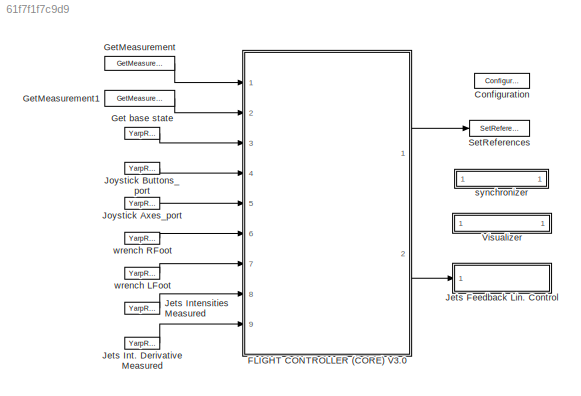
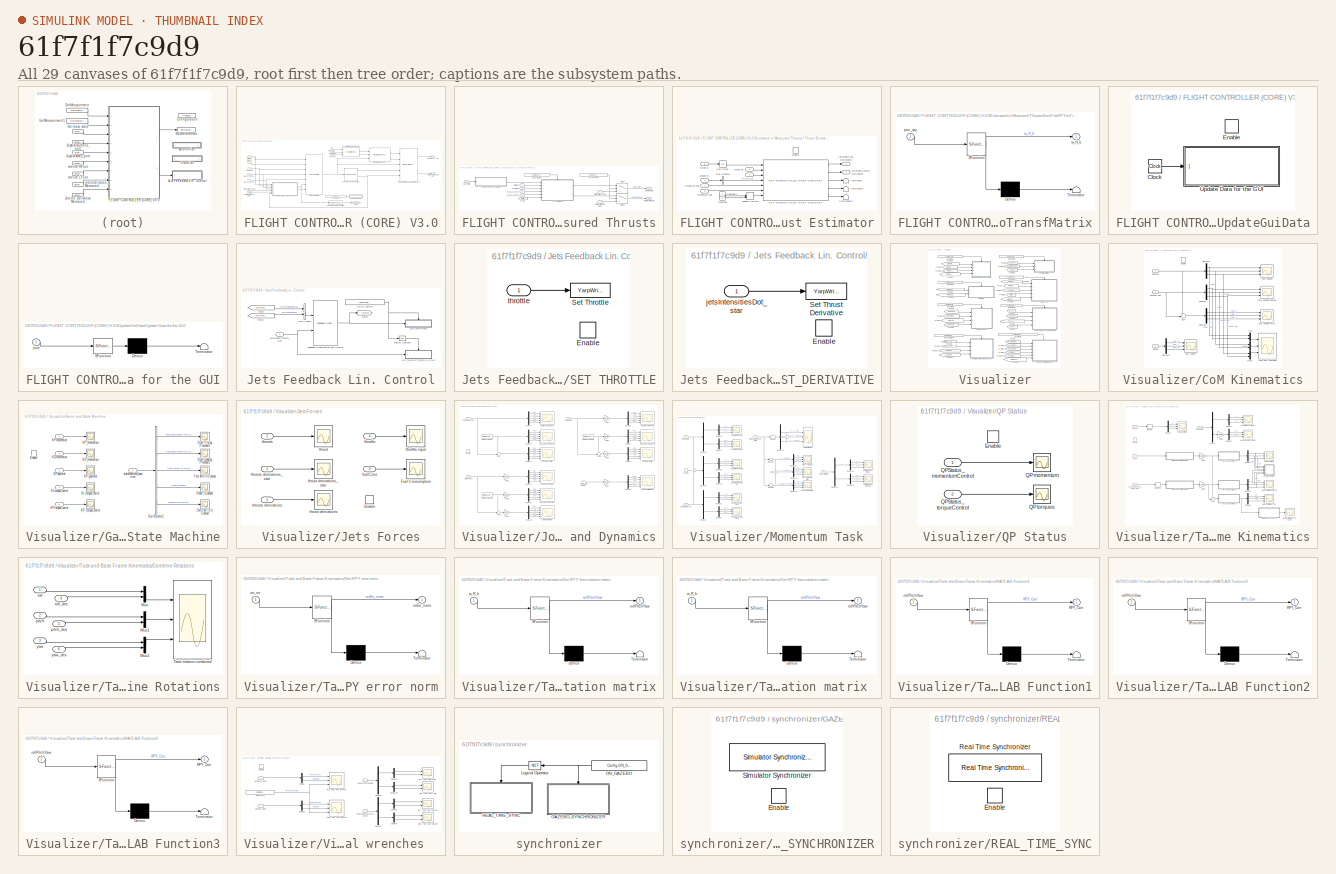
[diagram: thumbnail index - all 29 canvases of the model, root first then tree order]
MODEL mdl_61f7f1f7c9d9
KIND model
CONFIG AbsTol = auto
CONFIG EnableMultiTasking = off
CONFIG FixedStep = Config.tStep
CONFIG InitFcn = cd(fileparts(which(bdroot)));\ninitMomentumBasedFlight;
CONFIG MaxStep = auto
CONFIG MinStep = auto
CONFIG RelTol = 1e-3
CONFIG SampleTimeConstraint = Unconstrained
CONFIG SolverName = FixedStepDiscrete
CONFIG StartTime = 0.0
CONFIG StopFcn = cd(fileparts(which(bdroot)));\nstopMomentumBasedFlight;
CONFIG StopTime = Config.simulationTime
BLOCK [Reference] Configuration  REF=WBToolboxLibrary/Utilities/Configuration
  Ports = []
  SourceBlock = WBToolboxLibrary/Utilities/Configuration
  SourceProductName = WholeBodyToolbox
BLOCK [SubSystem] FLIGHT CONTROLLER (CORE) V3.0
  Ports = [9, 2]
  RequestExecContextInheritance = off
BLOCK [Reference] FLIGHT CONTROLLER (CORE) V3.0/Compute Fuel Consumption  REF=momentum_flight_control_v1/Compute Fuel Consumption  (lib defined in slx_fc105a0923ff)
  Ports = [1, 1]
  SourceBlock = momentum_flight_control_v1/Compute Fuel Consumption
  SourceProductName = iRonCub Library v1
BLOCK [Constant] FLIGHT CONTROLLER (CORE) V3.0/Constant1
  Value = Config.USE_FLIGHT_DATA_GUI
BLOCK [Reference] FLIGHT CONTROLLER (CORE) V3.0/Dynamics and Kinematics  REF=momentum_flight_control_v1/Dynamics and Kinematics  (lib defined in slx_fc105a0923ff)
  Ports = [1, 2]
  SourceBlock = momentum_flight_control_v1/Dynamics and Kinematics
  SourceProductName = iRonCub Library v1
BLOCK [SubSystem] FLIGHT CONTROLLER (CORE) V3.0/Estimated or Measured Thrusts
  Ports = [7, 2]
  RequestExecContextInheritance = off
BLOCK [SubSystem] FLIGHT CONTROLLER (CORE) V3.0/Estimated or Measured Thrusts/ Thrust Estimator
  Ports = [6, 2, 1]
  RequestExecContextInheritance = off
BLOCK [BusSelector] FLIGHT CONTROLLER (CORE) V3.0/Estimated or Measured Thrusts/ Thrust Estimator/Bus Selector
  OutputSignals = L
  Ports = [1, 1]
BLOCK [Constant] FLIGHT CONTROLLER (CORE) V3.0/Estimated or Measured Thrusts/ Thrust Estimator/Constant
  Value = 0
BLOCK [Constant] FLIGHT CONTROLLER (CORE) V3.0/Estimated or Measured Thrusts/ Thrust Estimator/Constant1
BLOCK [Reference] FLIGHT CONTROLLER (CORE) V3.0/Estimated or Measured Thrusts/ Thrust Estimator/EKF-MOMENTUM_JET_FEET-CMM_FEET  REF=thrust_estimation_v1/EKF-MOMENTUM_JET_FEET-CMM_FEET  (lib defined in slx_01474318e4ee)
  Ports = [7, 5]
  SourceBlock = thrust_estimation_v1/EKF-MOMENTUM_JET_FEET-CMM_FEET
  SourceProductName = iRonCub Library v1
BLOCK [EnablePort] FLIGHT CONTROLLER (CORE) V3.0/Estimated or Measured Thrusts/ Thrust Estimator/Enable
  Ports = []
BLOCK [ManualSwitch] FLIGHT CONTROLLER (CORE) V3.0/Estimated or Measured Thrusts/ Thrust Estimator/Manual Switch
BLOCK [Terminator] FLIGHT CONTROLLER (CORE) V3.0/Estimated or Measured Thrusts/ Thrust Estimator/Terminator
BLOCK [Terminator] FLIGHT CONTROLLER (CORE) V3.0/Estimated or Measured Thrusts/ Thrust Estimator/Terminator1
BLOCK [Terminator] FLIGHT CONTROLLER (CORE) V3.0/Estimated or Measured Thrusts/ Thrust Estimator/Terminator2
BLOCK [UnitDelay] FLIGHT CONTROLLER (CORE) V3.0/Estimated or Measured Thrusts/ Thrust Estimator/Unit Delay
  HasFrameUpgradeWarning = on
  SampleTime = -1
BLOCK [Inport] FLIGHT CONTROLLER (CORE) V3.0/Estimated or Measured Thrusts/ Thrust Estimator/dynamics
  NameLocation = left
  Port = 3
BLOCK [Outport] FLIGHT CONTROLLER (CORE) V3.0/Estimated or Measured Thrusts/ Thrust Estimator/jetIntensitiesDot_Estimated
  NameLocation = right
  Port = 2
BLOCK [Outport] FLIGHT CONTROLLER (CORE) V3.0/Estimated or Measured Thrusts/ Thrust Estimator/jetIntensities_Estimated
  NameLocation = right
BLOCK [Inport] FLIGHT CONTROLLER (CORE) V3.0/Estimated or Measured Thrusts/ Thrust Estimator/jointPos
  NameLocation = left
  Port = 2
BLOCK [Inport] FLIGHT CONTROLLER (CORE) V3.0/Estimated or Measured Thrusts/ Thrust Estimator/throttle
  Port = 6
BLOCK [Inport] FLIGHT CONTROLLER (CORE) V3.0/Estimated or Measured Thrusts/ Thrust Estimator/w_H_b
  NameLocation = left
BLOCK [Inport] FLIGHT CONTROLLER (CORE) V3.0/Estimated or Measured Thrusts/ Thrust Estimator/wrench_LFoot
  NameLocation = left
  Port = 4
BLOCK [Inport] FLIGHT CONTROLLER (CORE) V3.0/Estimated or Measured Thrusts/ Thrust Estimator/wrench_RFoot
  NameLocation = left
  Port = 5
BLOCK [From] FLIGHT CONTROLLER (CORE) V3.0/Estimated or Measured Thrusts/From2
  GotoTag = throttle
  TagVisibility = global
BLOCK [Constant] FLIGHT CONTROLLER (CORE) V3.0/Estimated or Measured Thrusts/ON_GAZEBO 
  Value = Config.USE_JET_DYNAMICS
BLOCK [Constant] FLIGHT CONTROLLER (CORE) V3.0/Estimated or Measured Thrusts/ON_GAZEBO 1
  Value = Config.USE_THRUST_ESTIMATOR
BLOCK [Switch] FLIGHT CONTROLLER (CORE) V3.0/Estimated or Measured Thrusts/Switch
  Criteria = u2 > Threshold
  InputSameDT = off
  SaturateOnIntegerOverflow = off
BLOCK [Switch] FLIGHT CONTROLLER (CORE) V3.0/Estimated or Measured Thrusts/Switch1
  Criteria = u2 > Threshold
  InputSameDT = off
  SaturateOnIntegerOverflow = off
BLOCK [Inport] FLIGHT CONTROLLER (CORE) V3.0/Estimated or Measured Thrusts/baseState
  Port = 2
BLOCK [Inport] FLIGHT CONTROLLER (CORE) V3.0/Estimated or Measured Thrusts/dynamics
  NameLocation = left
  Port = 7
BLOCK [SubSystem] FLIGHT CONTROLLER (CORE) V3.0/Estimated or Measured Thrusts/fromPosRPYtoTransfMatrix
  ErrorFcn = Stateflow.Translate.translate
  PermitHierarchicalResolution = ExplicitOnly
  Ports = [1, 1]
  RequestExecContextInheritance = off
  SFBlockType = MATLAB Function
  TreatAsAtomicUnit = on
BLOCK [Demux] FLIGHT CONTROLLER (CORE) V3.0/Estimated or Measured Thrusts/fromPosRPYtoTransfMatrix/ Demux 
  Outputs = 1
  Ports = [1, 1]
BLOCK [S-Function] FLIGHT CONTROLLER (CORE) V3.0/Estimated or Measured Thrusts/fromPosRPYtoTransfMatrix/ SFunction 
  EnableBusSupport = on
  FunctionName = sf_sfun
  PortCounts = [1 2]
  Ports = [1, 2]
  SFcnIsStateOwnerBlock = off
  SFunctionDeploymentMode = off
  Tag = Stateflow S-Function 5
BLOCK [Terminator] FLIGHT CONTROLLER (CORE) V3.0/Estimated or Measured Thrusts/fromPosRPYtoTransfMatrix/ Terminator 
BLOCK [Inport] FLIGHT CONTROLLER (CORE) V3.0/Estimated or Measured Thrusts/fromPosRPYtoTransfMatrix/pos_rpy
BLOCK [Outport] FLIGHT CONTROLLER (CORE) V3.0/Estimated or Measured Thrusts/fromPosRPYtoTransfMatrix/w_H_b
  VectorParamsAs1DForOutWhenUnconnected = off
BLOCK [Inport] FLIGHT CONTROLLER (CORE) V3.0/Estimated or Measured Thrusts/jetIntensitiesDot_meas
  NameLocation = left
  Port = 6
BLOCK [Inport] FLIGHT CONTROLLER (CORE) V3.0/Estimated or Measured Thrusts/jetIntensities_meas
  NameLocation = left
  Port = 5
BLOCK [Outport] FLIGHT CONTROLLER (CORE) V3.0/Estimated or Measured Thrusts/jetsIntensities
BLOCK [Outport] FLIGHT CONTROLLER (CORE) V3.0/Estimated or Measured Thrusts/jetsIntensitiesDot
  Port = 2
BLOCK [Inport] FLIGHT CONTROLLER (CORE) V3.0/Estimated or Measured Thrusts/jointPos
  NameLocation = left
BLOCK [Inport] FLIGHT CONTROLLER (CORE) V3.0/Estimated or Measured Thrusts/wrench_LFoot
  NameLocation = left
  Port = 4
BLOCK [Inport] FLIGHT CONTROLLER (CORE) V3.0/Estimated or Measured Thrusts/wrench_RFoot
  NameLocation = left
  Port = 3
BLOCK [Reference] FLIGHT CONTROLLER (CORE) V3.0/Flight Controller RAL-HUMANOIDS V3.0  REF=momentum_flight_control_v1/Flight Controller RAL-HUMANOIDS V3.0  (lib defined in slx_fc105a0923ff)
  Ports = [5, 2]
  SourceBlock = momentum_flight_control_v1/Flight Controller RAL-HUMANOIDS V3.0
  SourceProductName = iRonCub Library v1
BLOCK [Reference] FLIGHT CONTROLLER (CORE) V3.0/Flight State Machine  REF=momentum_flight_control_v1/Flight State Machine  (lib defined in slx_fc105a0923ff)
  Ports = [3, 2]
  SourceBlock = momentum_flight_control_v1/Flight State Machine
  SourceProductName = iRonCub Library v1
BLOCK [Reference] FLIGHT CONTROLLER (CORE) V3.0/Get System State  REF=momentum_flight_control_v1/Get System State  (lib defined in slx_fc105a0923ff)
  Ports = [7, 1]
  SourceBlock = momentum_flight_control_v1/Get System State
  SourceProductName = iRonCub Library v1
BLOCK [Goto] FLIGHT CONTROLLER (CORE) V3.0/Goto
  GotoTag = FuelCons
  TagVisibility = global
BLOCK [Constant] FLIGHT CONTROLLER (CORE) V3.0/Input_GUI
  NameLocation = top
  Value = 0
BLOCK [Reference] FLIGHT CONTROLLER (CORE) V3.0/JoyStick-flightGUI Commands  REF=momentum_flight_control_v1/JoyStick-flightGUI Commands  (lib defined in slx_fc105a0923ff)
  NameLocation = top
  Ports = [3, 2]
  SourceBlock = momentum_flight_control_v1/JoyStick-flightGUI Commands
  SourceProductName = iRonCub Library v1
BLOCK [SubSystem] FLIGHT CONTROLLER (CORE) V3.0/UpdateGuiData
  NameLocation = right
  Ports = [0, 0, 1]
  RequestExecContextInheritance = off
BLOCK [Clock] FLIGHT CONTROLLER (CORE) V3.0/UpdateGuiData/Clock
BLOCK [EnablePort] FLIGHT CONTROLLER (CORE) V3.0/UpdateGuiData/Enable
  Ports = []
BLOCK [SubSystem] FLIGHT CONTROLLER (CORE) V3.0/UpdateGuiData/Update Data for the GUI
  ErrorFcn = Stateflow.Translate.translate
  PermitHierarchicalResolution = ExplicitOnly
  Ports = [1]
  RequestExecContextInheritance = off
  SFBlockType = MATLAB Function
  TreatAsAtomicUnit = on
BLOCK [Demux] FLIGHT CONTROLLER (CORE) V3.0/UpdateGuiData/Update Data for the GUI/ Demux 
  Outputs = 1
  Ports = [1, 1]
BLOCK [S-Function] FLIGHT CONTROLLER (CORE) V3.0/UpdateGuiData/Update Data for the GUI/ SFunction 
  EnableBusSupport = on
  FunctionName = sf_sfun
  PortCounts = [1 1]
  Ports = [1, 1]
  SFcnIsStateOwnerBlock = off
  SFunctionDeploymentMode = off
  Tag = Stateflow S-Function 22
BLOCK [Terminator] FLIGHT CONTROLLER (CORE) V3.0/UpdateGuiData/Update Data for the GUI/ Terminator 
BLOCK [Inport] FLIGHT CONTROLLER (CORE) V3.0/UpdateGuiData/Update Data for the GUI/time
BLOCK [Inport] FLIGHT CONTROLLER (CORE) V3.0/baseState
  NameLocation = left
  Port = 3
BLOCK [Inport] FLIGHT CONTROLLER (CORE) V3.0/jetIntensitiesDot_meas
  NameLocation = left
  Port = 9
BLOCK [Inport] FLIGHT CONTROLLER (CORE) V3.0/jetIntensities_meas
  NameLocation = left
  Port = 8
BLOCK [Outport] FLIGHT CONTROLLER (CORE) V3.0/jetsIntensitiesDot_star
  Port = 2
  VectorParamsAs1DForOutWhenUnconnected = off
BLOCK [Inport] FLIGHT CONTROLLER (CORE) V3.0/jointPos
  NameLocation = left
BLOCK [Outport] FLIGHT CONTROLLER (CORE) V3.0/jointTorques_star
  VectorParamsAs1DForOutWhenUnconnected = off
BLOCK [Inport] FLIGHT CONTROLLER (CORE) V3.0/jointVel
  NameLocation = left
  Port = 2
BLOCK [Inport] FLIGHT CONTROLLER (CORE) V3.0/joyAxes
  Port = 5
BLOCK [Inport] FLIGHT CONTROLLER (CORE) V3.0/joyButtons
  Port = 4
BLOCK [Inport] FLIGHT CONTROLLER (CORE) V3.0/wrench_LFoot
  NameLocation = left
  Port = 7
BLOCK [Inport] FLIGHT CONTROLLER (CORE) V3.0/wrench_RFoot
  NameLocation = left
  Port = 6
BLOCK [Reference] Get base state  REF=WBToolboxLibrary/Utilities/YarpRead
  Ports = [0, 1]
  SourceBlock = WBToolboxLibrary/Utilities/YarpRead
  SourceProductName = WholeBodyToolbox
  SourceType = YARP Read
BLOCK [Reference] GetMeasurement  REF=WBToolboxLibrary/States/GetMeasurement
  Ports = [0, 1]
  SourceBlock = WBToolboxLibrary/States/GetMeasurement
  SourceProductName = WholeBodyToolbox
  SourceType = GetMeasurement
BLOCK [Reference] GetMeasurement1  REF=WBToolboxLibrary/States/GetMeasurement
  Ports = [0, 1]
  SourceBlock = WBToolboxLibrary/States/GetMeasurement
  SourceProductName = WholeBodyToolbox
  SourceType = GetMeasurement
BLOCK [SubSystem] Jets Feedback Lin. Control
  Ports = [1]
  RequestExecContextInheritance = off
BLOCK [BusCreator] Jets Feedback Lin. Control/Bus Creator
  DisplayOption = bar
  InheritFromInputs = on
  Inputs = 2
  Ports = [2, 1]
BLOCK [Reference] Jets Feedback Lin. Control/Feedback Linearization Jets Control  REF=jets_control_v1/Feedback linearization 4-jets control  (lib defined in slx_5a53060928af)
  Ports = [2, 1]
  SourceBlock = jets_control_v1/Feedback linearization 4-jets control
  SourceProductName = iRonCub Library v1
BLOCK [From] Jets Feedback Lin. Control/From
  GotoTag = jetsIntensities
  TagVisibility = global
BLOCK [From] Jets Feedback Lin. Control/From1
  GotoTag = jetIntensitiesDot
  TagVisibility = global
BLOCK [Goto] Jets Feedback Lin. Control/Goto1
  GotoTag = throttle
  TagVisibility = global
BLOCK [Logic] Jets Feedback Lin. Control/Logical Operator
  AllPortsSameDT = off
  Operator = NOT
  OutDataTypeStr = boolean
  Ports = [1, 1]
BLOCK [Constant] Jets Feedback Lin. Control/ON_GAZEBO 
  Value = Config.USE_JET_DYNAMICS
BLOCK [SubSystem] Jets Feedback Lin. Control/SET THROTTLE
  Ports = [1, 0, 1]
  RequestExecContextInheritance = off
BLOCK [EnablePort] Jets Feedback Lin. Control/SET THROTTLE/Enable
  Ports = []
BLOCK [Reference] Jets Feedback Lin. Control/SET THROTTLE/Set Throttle  REF=WBToolboxLibrary/Utilities/YarpWrite
  Ports = [1]
  SourceBlock = WBToolboxLibrary/Utilities/YarpWrite
  SourceProductName = WholeBodyToolbox
  SourceType = YARP Write
BLOCK [Inport] Jets Feedback Lin. Control/SET THROTTLE/throttle
BLOCK [SubSystem] Jets Feedback Lin. Control/SET_THRUST_DERIVATIVE
  Ports = [1, 0, 1]
  RequestExecContextInheritance = off
BLOCK [EnablePort] Jets Feedback Lin. Control/SET_THRUST_DERIVATIVE/Enable
  Ports = []
BLOCK [Reference] Jets Feedback Lin. Control/SET_THRUST_DERIVATIVE/Set Thrust Derivative  REF=WBToolboxLibrary/Utilities/YarpWrite
  Ports = [1]
  SourceBlock = WBToolboxLibrary/Utilities/YarpWrite
  SourceProductName = WholeBodyToolbox
  SourceType = YARP Write
BLOCK [Inport] Jets Feedback Lin. Control/SET_THRUST_DERIVATIVE/jetsIntensitiesDot_star
BLOCK [Inport] Jets Feedback Lin. Control/jetsIntensitiesDot_star
BLOCK [Reference] Jets Int. Derivative Measured  REF=WBToolboxLibrary/Utilities/YarpRead
  Ports = [0, 1]
  SourceBlock = WBToolboxLibrary/Utilities/YarpRead
  SourceProductName = WholeBodyToolbox
  SourceType = YARP Read
BLOCK [Reference] Jets Intensities Measured  REF=WBToolboxLibrary/Utilities/YarpRead
  Ports = [0, 1]
  SourceBlock = WBToolboxLibrary/Utilities/YarpRead
  SourceProductName = WholeBodyToolbox
  SourceType = YARP Read
BLOCK [Reference] Joystick Axes_port  REF=WBToolboxLibrary/Utilities/YarpRead
  Ports = [0, 1]
  SourceBlock = WBToolboxLibrary/Utilities/YarpRead
  SourceProductName = WholeBodyToolbox
  SourceType = YARP Read
BLOCK [Reference] Joystick Buttons_port  REF=WBToolboxLibrary/Utilities/YarpRead
  Ports = [0, 1]
  SourceBlock = WBToolboxLibrary/Utilities/YarpRead
  SourceProductName = WholeBodyToolbox
  SourceType = YARP Read
BLOCK [Reference] SetReferences  REF=WBToolboxLibrary/Actuators/SetReferences
  Ports = [1]
  SourceBlock = WBToolboxLibrary/Actuators/SetReferences
  SourceProductName = WholeBodyToolbox
  SourceType = SetReferences
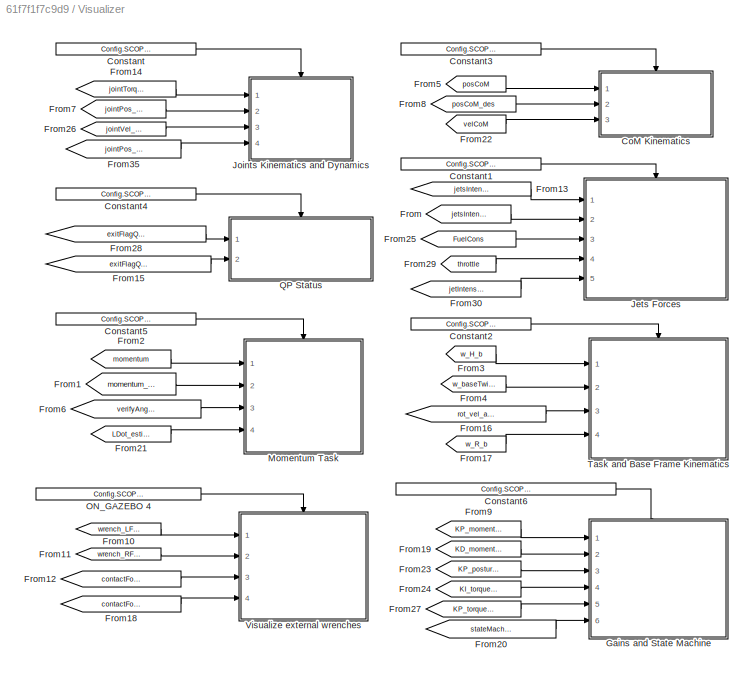
BLOCK [SubSystem] Visualizer
  Ports = []
  RequestExecContextInheritance = off
BLOCK [SubSystem] Visualizer/CoM Kinematics
  Ports = [3, 0, 1]
  RequestExecContextInheritance = off
BLOCK [Scope] Visualizer/CoM Kinematics/CoM position
  Floating = off
  NumInputPorts = 3
  Ports = [3]
  ScopeSpecificationString = Simulink.scopes.TimeScopeBlockCfg('CurrentConfiguration', extmgr.ConfigurationSet(extmgr.Configuration('Core','General UI',true),extmgr.Configuration('Core','Source UI',true),extmgr.Configuration('Sources','WiredSimulink',true,'DataLoggingVariableName','posCoM_SCOPE','DataLogging',true,'DataLoggingSaveFormat','StructureWithTime'),extmgr.Configuration('Visuals','Time Domain',true,'SerializedDisplay...<+2783ch>
BLOCK [Scope] Visualizer/CoM Kinematics/CoM position desired
  Floating = off
  NumInputPorts = 3
  Ports = [3]
  ScopeSpecificationString = Simulink.scopes.TimeScopeBlockCfg('CurrentConfiguration', extmgr.ConfigurationSet(extmgr.Configuration('Core','General UI',true),extmgr.Configuration('Core','Source UI',true),extmgr.Configuration('Sources','WiredSimulink',true,'DataLoggingVariableName','posCOM_des_SCOPE','DataLogging',true,'DataLoggingSaveFormat','StructureWithTime'),extmgr.Configuration('Visuals','Time Domain',true,'SerializedDis...<+2825ch>
BLOCK [Scope] Visualizer/CoM Kinematics/CoM position error
  Floating = off
  NumInputPorts = 3
  Ports = [3]
  ScopeSpecificationString = Simulink.scopes.TimeScopeBlockCfg('CurrentConfiguration', extmgr.ConfigurationSet(extmgr.Configuration('Core','General UI',true),extmgr.Configuration('Core','Source UI',true),extmgr.Configuration('Sources','WiredSimulink',true,'DataLoggingVariableName','posCoM_err_SCOPE','DataLogging',true,'DataLoggingSaveFormat','StructureWithTime'),extmgr.Configuration('Visuals','Time Domain',true,'SerializedDis...<+2789ch>
BLOCK [Scope] Visualizer/CoM Kinematics/CoM velocity
  Floating = off
  NumInputPorts = 3
  Ports = [3]
  ScopeSpecificationString = Simulink.scopes.TimeScopeBlockCfg('CurrentConfiguration', extmgr.ConfigurationSet(extmgr.Configuration('Core','General UI',true),extmgr.Configuration('Core','Source UI',true),extmgr.Configuration('Sources','WiredSimulink',true,'DataLoggingVariableName','velCoM_SCOPE','DataLogging',true,'DataLoggingSaveFormat','StructureWithTime'),extmgr.Configuration('Visuals','Time Domain',true,'SerializedDisplay...<+2786ch>
BLOCK [Demux] Visualizer/CoM Kinematics/Demux1
  Outputs = 3
  Ports = [1, 3]
BLOCK [Demux] Visualizer/CoM Kinematics/Demux2
  Outputs = 3
  Ports = [1, 3]
BLOCK [Demux] Visualizer/CoM Kinematics/Demux3
  Outputs = 3
  Ports = [1, 3]
BLOCK [Demux] Visualizer/CoM Kinematics/Demux8
  Outputs = 3
  Ports = [1, 3]
BLOCK [EnablePort] Visualizer/CoM Kinematics/Enable
  Ports = []
BLOCK [Mux] Visualizer/CoM Kinematics/Mux
  DisplayOption = bar
  Inputs = 2
  Ports = [2, 1]
BLOCK [Mux] Visualizer/CoM Kinematics/Mux1
  DisplayOption = bar
  Inputs = 2
  Ports = [2, 1]
BLOCK [Mux] Visualizer/CoM Kinematics/Mux2
  DisplayOption = bar
  Inputs = 2
  Ports = [2, 1]
BLOCK [Sum] Visualizer/CoM Kinematics/Sum
  Inputs = +-|
  Ports = [2, 1]
BLOCK [Scope] Visualizer/CoM Kinematics/Task CoM combined
  Floating = off
  NumInputPorts = 3
  Ports = [3]
  ScopeSpecificationString = Simulink.scopes.TimeScopeBlockCfg('CurrentConfiguration', extmgr.ConfigurationSet(extmgr.Configuration('Core','General UI',true),extmgr.Configuration('Core','Source UI',true),extmgr.Configuration('Sources','WiredSimulink',true,'DataLoggingVariableName','ScopeData1','DataLoggingSaveFormat','StructureWithTime'),extmgr.Configuration('Visuals','Time Domain',true,'SerializedDisplays',{struct('MinYLimRe...<+2825ch>
BLOCK [Inport] Visualizer/CoM Kinematics/posCoM
BLOCK [Inport] Visualizer/CoM Kinematics/posCoM_des
  Port = 2
BLOCK [Inport] Visualizer/CoM Kinematics/velCoM
  Port = 3
BLOCK [Constant] Visualizer/Constant
  Value = Config.SCOPE_JOINTS
BLOCK [Constant] Visualizer/Constant1
  Value = Config.SCOPE_JETS
BLOCK [Constant] Visualizer/Constant2
  Value = Config.SCOPE_BASE
BLOCK [Constant] Visualizer/Constant3
  Value = Config.SCOPE_COM
BLOCK [Constant] Visualizer/Constant4
  Value = Config.SCOPE_QP
BLOCK [Constant] Visualizer/Constant5
  Value = Config.SCOPE_MOMENTUM
BLOCK [Constant] Visualizer/Constant6
  Value = Config.SCOPE_GAINS_AND_STATE_MACHINE
BLOCK [From] Visualizer/From
  GotoTag = jetsIntensities
  TagVisibility = global
BLOCK [From] Visualizer/From1
  GotoTag = momentum_des
  TagVisibility = global
BLOCK [From] Visualizer/From10
  GotoTag = wrench_LFoot
  TagVisibility = global
BLOCK [From] Visualizer/From11
  GotoTag = wrench_RFoot
  TagVisibility = global
BLOCK [From] Visualizer/From12
  GotoTag = contactForces_star
  TagVisibility = global
BLOCK [From] Visualizer/From13
  GotoTag = jetsIntensitiesDot_star
  TagVisibility = global
BLOCK [From] Visualizer/From14
  GotoTag = jointTorques_star
  TagVisibility = global
BLOCK [From] Visualizer/From15
  GotoTag = exitFlagQP_torqueControl
  TagVisibility = global
BLOCK [From] Visualizer/From16
  GotoTag = rot_vel_acc_jerk_base_des
  TagVisibility = global
BLOCK [From] Visualizer/From17
  GotoTag = w_R_b
  TagVisibility = global
BLOCK [From] Visualizer/From18
  GotoTag = contactForcesDot_star
  TagVisibility = global
BLOCK [From] Visualizer/From19
  GotoTag = KD_momentum
  TagVisibility = global
BLOCK [From] Visualizer/From2
  GotoTag = momentum
  TagVisibility = global
BLOCK [From] Visualizer/From20
  GotoTag = stateMachineQuantities
  TagVisibility = global
BLOCK [From] Visualizer/From21
  GotoTag = LDot_estimated
  TagVisibility = global
BLOCK [From] Visualizer/From22
  GotoTag = velCoM
  TagVisibility = global
BLOCK [From] Visualizer/From23
  GotoTag = KP_postural
  TagVisibility = global
BLOCK [From] Visualizer/From24
  GotoTag = KI_torqueControl
  TagVisibility = global
BLOCK [From] Visualizer/From25
  GotoTag = FuelCons
  TagVisibility = global
BLOCK [From] Visualizer/From26
  GotoTag = jointVel_star
  TagVisibility = global
BLOCK [From] Visualizer/From27
  GotoTag = KP_torqueControl
  TagVisibility = global
BLOCK [From] Visualizer/From28
  GotoTag = exitFlagQP_momentumControl
  TagVisibility = global
BLOCK [From] Visualizer/From29
  GotoTag = throttle
  TagVisibility = global
BLOCK [From] Visualizer/From3
  GotoTag = w_H_b
  TagVisibility = global
BLOCK [From] Visualizer/From30
  GotoTag = jetIntensitiesDot
  TagVisibility = global
BLOCK [From] Visualizer/From35
  GotoTag = jointPos_err_integral
  TagVisibility = global
BLOCK [From] Visualizer/From4
  GotoTag = w_baseTwist
  TagVisibility = global
BLOCK [From] Visualizer/From5
  GotoTag = posCoM
  TagVisibility = global
BLOCK [From] Visualizer/From6
  GotoTag = verifyAngMomAndInertia
  TagVisibility = global
BLOCK [From] Visualizer/From7
  GotoTag = jointPos_des
  TagVisibility = global
BLOCK [From] Visualizer/From8
  GotoTag = posCoM_des
  TagVisibility = global
BLOCK [From] Visualizer/From9
  GotoTag = KP_momentum
  TagVisibility = global
BLOCK [SubSystem] Visualizer/Gains and State Machine
  Ports = [6, 0, 1]
  RequestExecContextInheritance = off
BLOCK [BusSelector] Visualizer/Gains and State Machine/Bus Selector1
  OutputSignals = decreaseMaxFootVerticalForce,increaseMinFootVerticalForce,feetContactIsActive,robotIsLanded,oneFootIsInContact
  Ports = [1, 5]
BLOCK [EnablePort] Visualizer/Gains and State Machine/Enable
  Ports = []
BLOCK [Scope] Visualizer/Gains and State Machine/Feet Are in Contact
  Floating = off
  NumInputPorts = 1
  Ports = [1]
  ScopeSpecificationString = Simulink.scopes.TimeScopeBlockCfg('CurrentConfiguration', extmgr.ConfigurationSet(extmgr.Configuration('Core','General UI',true),extmgr.Configuration('Core','Source UI',true),extmgr.Configuration('Sources','WiredSimulink',true,'DataLoggingVariableName','feetContactIsActive_SCOPE','DataLogging',true,'DataLoggingSaveFormat','StructureWithTime'),extmgr.Configuration('Visuals','Time Domain',true,'Seri...<+1531ch>
BLOCK [Scope] Visualizer/Gains and State Machine/KD_momentum
  Floating = off
  NumInputPorts = 1
  Ports = [1]
  ScopeSpecificationString = Simulink.scopes.TimeScopeBlockCfg('CurrentConfiguration', extmgr.ConfigurationSet(extmgr.Configuration('Core','General UI',true),extmgr.Configuration('Core','Source UI',true),extmgr.Configuration('Sources','WiredSimulink',true,'DataLoggingVariableName','ScopeData2'),extmgr.Configuration('Visuals','Time Domain',true,'SerializedDisplays',{struct('MinYLimReal','2.56231','MaxYLimReal','66.38197','YLab...<+1503ch>
BLOCK [Inport] Visualizer/Gains and State Machine/KDmomentum
  Port = 2
BLOCK [Scope] Visualizer/Gains and State Machine/KI_torqueControl
  Floating = off
  NumInputPorts = 1
  Ports = [1]
  ScopeSpecificationString = Simulink.scopes.TimeScopeBlockCfg('CurrentConfiguration', extmgr.ConfigurationSet(extmgr.Configuration('Core','General UI',true),extmgr.Configuration('Core','Source UI',true),extmgr.Configuration('Sources','WiredSimulink',true,'DataLoggingVariableName','ScopeData4'),extmgr.Configuration('Visuals','Time Domain',true,'SerializedDisplays',{struct('MinYLimReal','9.00000','MaxYLimReal','11.00000','YLab...<+1464ch>
BLOCK [Inport] Visualizer/Gains and State Machine/KItorqueControl
  Port = 4
BLOCK [Scope] Visualizer/Gains and State Machine/KP_momentum
  Floating = off
  NumInputPorts = 1
  Ports = [1]
  ScopeSpecificationString = Simulink.scopes.TimeScopeBlockCfg('CurrentConfiguration', extmgr.ConfigurationSet(extmgr.Configuration('Core','General UI',true),extmgr.Configuration('Core','Source UI',true),extmgr.Configuration('Sources','WiredSimulink',true,'DataLoggingVariableName','ScopeData1'),extmgr.Configuration('Visuals','Time Domain',true,'SerializedDisplays',{struct('MinYLimReal','5.00000','MaxYLimReal','25.00000','YLab...<+1717ch>
BLOCK [Scope] Visualizer/Gains and State Machine/KP_postural
  Floating = off
  NumInputPorts = 1
  Ports = [1]
  ScopeSpecificationString = Simulink.scopes.TimeScopeBlockCfg('CurrentConfiguration', extmgr.ConfigurationSet(extmgr.Configuration('Core','General UI',true),extmgr.Configuration('Core','Source UI',true),extmgr.Configuration('Sources','WiredSimulink',true,'DataLoggingVariableName','ScopeData3'),extmgr.Configuration('Visuals','Time Domain',true,'SerializedDisplays',{struct('MinYLimReal','-13.75','MaxYLimReal','223.75','YLabelR...<+1794ch>
BLOCK [Scope] Visualizer/Gains and State Machine/KP_torqueControl
  Floating = off
  NumInputPorts = 1
  Ports = [1]
  ScopeSpecificationString = Simulink.scopes.TimeScopeBlockCfg('CurrentConfiguration', extmgr.ConfigurationSet(extmgr.Configuration('Core','General UI',true),extmgr.Configuration('Core','Source UI',true),extmgr.Configuration('Sources','WiredSimulink',true,'DataLoggingVariableName','ScopeData5'),extmgr.Configuration('Visuals','Time Domain',true,'SerializedDisplays',{struct('MinYLimReal','12.36068','MaxYLimReal','32.36068','YLa...<+1435ch>
BLOCK [Inport] Visualizer/Gains and State Machine/KPmomentum
BLOCK [Inport] Visualizer/Gains and State Machine/KPpostural
  Port = 3
BLOCK [Inport] Visualizer/Gains and State Machine/KPtorqueControl
  Port = 5
BLOCK [Scope] Visualizer/Gains and State Machine/One Foot Is In Contact
  Floating = off
  NumInputPorts = 1
  Ports = [1]
  ScopeSpecificationString = Simulink.scopes.TimeScopeBlockCfg('CurrentConfiguration', extmgr.ConfigurationSet(extmgr.Configuration('Core','General UI',true),extmgr.Configuration('Core','Source UI',true),extmgr.Configuration('Sources','WiredSimulink',true,'DataLoggingVariableName','oneFootIsInContact_SCOPE','DataLogging',true,'DataLoggingSaveFormat','StructureWithTime'),extmgr.Configuration('Visuals','Time Domain',true,'Seria...<+1517ch>
BLOCK [Scope] Visualizer/Gains and State Machine/Robot Is Landed
  Floating = off
  NumInputPorts = 1
  Ports = [1]
  ScopeSpecificationString = Simulink.scopes.TimeScopeBlockCfg('CurrentConfiguration', extmgr.ConfigurationSet(extmgr.Configuration('Core','General UI',true),extmgr.Configuration('Core','Source UI',true),extmgr.Configuration('Sources','WiredSimulink',true,'DataLoggingVariableName','robotIsLanded_SCOPE','DataLogging',true,'DataLoggingSaveFormat','StructureWithTime'),extmgr.Configuration('Visuals','Time Domain',true,'Serialized...<+1506ch>
BLOCK [Scope] Visualizer/Gains and State Machine/Start Flying Procedure
  Floating = off
  NumInputPorts = 1
  Ports = [1]
  ScopeSpecificationString = Simulink.scopes.TimeScopeBlockCfg('CurrentConfiguration', extmgr.ConfigurationSet(extmgr.Configuration('Core','General UI',true),extmgr.Configuration('Core','Source UI',true),extmgr.Configuration('Sources','WiredSimulink',true,'DataLoggingVariableName','startFlying_SCOPE','DataLogging',true,'DataLoggingSaveFormat','StructureWithTime'),extmgr.Configuration('Visuals','Time Domain',true,'SerializedDi...<+1512ch>
BLOCK [Scope] Visualizer/Gains and State Machine/Start Landing Procedure
  Floating = off
  NumInputPorts = 1
  Ports = [1]
  ScopeSpecificationString = Simulink.scopes.TimeScopeBlockCfg('CurrentConfiguration', extmgr.ConfigurationSet(extmgr.Configuration('Core','General UI',true),extmgr.Configuration('Core','Source UI',true),extmgr.Configuration('Sources','WiredSimulink',true,'DataLoggingVariableName','startLanding_SCOPE','DataLogging',true,'DataLoggingSaveFormat','StructureWithTime'),extmgr.Configuration('Visuals','Time Domain',true,'SerializedD...<+1531ch>
BLOCK [Inport] Visualizer/Gains and State Machine/stateMachineQuantities
  Port = 6
BLOCK [SubSystem] Visualizer/Jets Forces
  Ports = [5, 0, 1]
  RequestExecContextInheritance = off
BLOCK [EnablePort] Visualizer/Jets Forces/Enable
  Ports = []
BLOCK [Scope] Visualizer/Jets Forces/Fuel Consumption
  Floating = off
  NumInputPorts = 1
  Ports = [1]
  ScopeSpecificationString = Simulink.scopes.TimeScopeBlockCfg('CurrentConfiguration', extmgr.ConfigurationSet(extmgr.Configuration('Core','General UI',true),extmgr.Configuration('Core','Source UI',true),extmgr.Configuration('Sources','WiredSimulink',true,'DataLoggingVariableName','ScopeData2'),extmgr.Configuration('Visuals','Time Domain',true,'SerializedDisplays',{struct('MinYLimReal','-0.16675','MaxYLimReal','1.50071','YLab...<+1419ch>
BLOCK [Inport] Visualizer/Jets Forces/fuelCons
  Port = 3
BLOCK [Inport] Visualizer/Jets Forces/throttle
  Port = 4
BLOCK [Scope] Visualizer/Jets Forces/throttle input
  Floating = off
  NumInputPorts = 1
  Ports = [1]
  ScopeSpecificationString = Simulink.scopes.TimeScopeBlockCfg('CurrentConfiguration', extmgr.ConfigurationSet(extmgr.Configuration('Core','General UI',true),extmgr.Configuration('Core','Source UI',true),extmgr.Configuration('Sources','WiredSimulink',true,'DataLoggingVariableName','throttle_SCOPE','DataLogging',true,'DataLoggingSaveFormat','StructureWithTime'),extmgr.Configuration('Visuals','Time Domain',true,'SerializedDispl...<+1746ch>
BLOCK [Scope] Visualizer/Jets Forces/thrust
  Floating = off
  NumInputPorts = 1
  Ports = [1]
  ScopeSpecificationString = Simulink.scopes.TimeScopeBlockCfg('CurrentConfiguration', extmgr.ConfigurationSet(extmgr.Configuration('Core','General UI',true),extmgr.Configuration('Core','Source UI',true),extmgr.Configuration('Sources','WiredSimulink',true,'DataLoggingVariableName','thrusts_SCOPE','DataLogging',true,'DataLoggingSaveFormat','StructureWithTime'),extmgr.Configuration('Visuals','Time Domain',true,'SerializedDispla...<+1736ch>
BLOCK [Scope] Visualizer/Jets Forces/thrust derivatives
  Floating = off
  NumInputPorts = 1
  Ports = [1]
  ScopeSpecificationString = Simulink.scopes.TimeScopeBlockCfg('CurrentConfiguration', extmgr.ConfigurationSet(extmgr.Configuration('Core','General UI',true),extmgr.Configuration('Core','Source UI',true),extmgr.Configuration('Sources','WiredSimulink',true,'DataLoggingVariableName','thrustDot_SCOPE','DataLogging',true,'DataLoggingSaveFormat','StructureWithTime'),extmgr.Configuration('Visuals','Time Domain',true,'SerializedDisp...<+1791ch>
BLOCK [Scope] Visualizer/Jets Forces/thrust derivatives_star
  Floating = off
  NumInputPorts = 1
  Ports = [1]
  ScopeSpecificationString = Simulink.scopes.TimeScopeBlockCfg('CurrentConfiguration', extmgr.ConfigurationSet(extmgr.Configuration('Core','General UI',true),extmgr.Configuration('Core','Source UI',true),extmgr.Configuration('Sources','WiredSimulink',true,'DataLoggingVariableName','thrustDotStar_SCOPE','DataLogging',true,'DataLoggingSaveFormat','StructureWithTime'),extmgr.Configuration('Visuals','Time Domain',true,'Serialized...<+1815ch>
BLOCK [Inport] Visualizer/Jets Forces/thrusts
  Port = 2
BLOCK [Inport] Visualizer/Jets Forces/thrusts derivatives
  Port = 5
BLOCK [Inport] Visualizer/Jets Forces/thrusts derivatives_star
BLOCK [SubSystem] Visualizer/Joints Kinematics and Dynamics
  Ports = [4, 0, 1]
  RequestExecContextInheritance = off
BLOCK [Demux] Visualizer/Joints Kinematics and Dynamics/Demux
  Outputs = Config.numOfJointsForEachControlboard
  Ports = [1, 5]
BLOCK [Demux] Visualizer/Joints Kinematics and Dynamics/Demux1
  Outputs = Config.numOfJointsForEachControlboard
  Ports = [1, 5]
BLOCK [Demux] Visualizer/Joints Kinematics and Dynamics/Demux2
  Outputs = Config.numOfJointsForEachControlboard
  Ports = [1, 5]
BLOCK [Demux] Visualizer/Joints Kinematics and Dynamics/Demux3
  Outputs = Config.numOfJointsForEachControlboard
  Ports = [1, 5]
BLOCK [Demux] Visualizer/Joints Kinematics and Dynamics/Demux4
  Outputs = Config.numOfJointsForEachControlboard
  Ports = [1, 5]
BLOCK [Demux] Visualizer/Joints Kinematics and Dynamics/Demux5
  Outputs = Config.numOfJointsForEachControlboard
  Ports = [1, 5]
BLOCK [Demux] Visualizer/Joints Kinematics and Dynamics/Demux6
  Outputs = Config.numOfJointsForEachControlboard
  Ports = [1, 5]
BLOCK [Demux] Visualizer/Joints Kinematics and Dynamics/Demux7
  Outputs = Config.numOfJointsForEachControlboard
  Ports = [1, 5]
BLOCK [Demux] Visualizer/Joints Kinematics and Dynamics/Demux8
  Outputs = Config.numOfJointsForEachControlboard
  Ports = [1, 5]
BLOCK [Demux] Visualizer/Joints Kinematics and Dynamics/Demux9
  Outputs = Config.numOfJointsForEachControlboard
  Ports = [1, 5]
BLOCK [Scope] Visualizer/Joints Kinematics and Dynamics/Desired Joint Position
  Floating = off
  NumInputPorts = 5
  Ports = [5]
  ScopeSpecificationString = Simulink.scopes.TimeScopeBlockCfg('CurrentConfiguration', extmgr.ConfigurationSet(extmgr.Configuration('Core','General UI',true),extmgr.Configuration('Core','Source UI',true),extmgr.Configuration('Sources','WiredSimulink',true,'DataLoggingVariableName','jointPosDes_SCOPE','DataLoggingSaveFormat','StructureWithTime','DataLogging',true),extmgr.Configuration('Visuals','Time Domain',true,'SerializedDi...<+4355ch>
BLOCK [Scope] Visualizer/Joints Kinematics and Dynamics/Desired Joint Torques
  Floating = off
  NumInputPorts = 5
  Ports = [5]
  ScopeSpecificationString = Simulink.scopes.TimeScopeBlockCfg('CurrentConfiguration', extmgr.ConfigurationSet(extmgr.Configuration('Core','General UI',true),extmgr.Configuration('Core','Source UI',true),extmgr.Configuration('Sources','WiredSimulink',true,'DataLoggingVariableName','jointTorqueDes_SCOPE','DataLoggingSaveFormat','StructureWithTime','DataLogging',true),extmgr.Configuration('Visuals','Time Domain',true,'Serialize...<+4350ch>
BLOCK [Scope] Visualizer/Joints Kinematics and Dynamics/Desired Joint Velocity
  Floating = off
  NumInputPorts = 5
  Ports = [5]
  ScopeSpecificationString = Simulink.scopes.TimeScopeBlockCfg('CurrentConfiguration', extmgr.ConfigurationSet(extmgr.Configuration('Core','General UI',true),extmgr.Configuration('Core','Source UI',true),extmgr.Configuration('Sources','WiredSimulink',true,'DataLoggingVariableName','jointVelDes_SCOPE','DataLoggingSaveFormat','StructureWithTime','DataLogging',true),extmgr.Configuration('Visuals','Time Domain',true,'SerializedDi...<+4337ch>
BLOCK [EnablePort] Visualizer/Joints Kinematics and Dynamics/Enable
  Ports = []
BLOCK [Gain] Visualizer/Joints Kinematics and Dynamics/Gain1
  Gain = 180/pi
BLOCK [Gain] Visualizer/Joints Kinematics and Dynamics/Gain2
  Gain = 180/pi
BLOCK [Gain] Visualizer/Joints Kinematics and Dynamics/Gain3
  Gain = 180/pi
BLOCK [Gain] Visualizer/Joints Kinematics and Dynamics/Gain4
  Gain = 180/pi
BLOCK [Gain] Visualizer/Joints Kinematics and Dynamics/Gain5
  Gain = 180/pi
BLOCK [Gain] Visualizer/Joints Kinematics and Dynamics/Gain6
  Gain = 180/pi
BLOCK [Gain] Visualizer/Joints Kinematics and Dynamics/Gain7
  Gain = 180/pi
BLOCK [Reference] Visualizer/Joints Kinematics and Dynamics/GetMeasurement  REF=WBToolboxLibrary/States/GetMeasurement
  Ports = [0, 1]
  SourceBlock = WBToolboxLibrary/States/GetMeasurement
  SourceProductName = WholeBodyToolbox
  SourceType = GetMeasurement
BLOCK [Reference] Visualizer/Joints Kinematics and Dynamics/GetMeasurement1  REF=WBToolboxLibrary/States/GetMeasurement
  Ports = [0, 1]
  SourceBlock = WBToolboxLibrary/States/GetMeasurement
  SourceProductName = WholeBodyToolbox
  SourceType = GetMeasurement
BLOCK [Reference] Visualizer/Joints Kinematics and Dynamics/GetMeasurement2  REF=WBToolboxLibrary/States/GetMeasurement
  Ports = [0, 1]
  SourceBlock = WBToolboxLibrary/States/GetMeasurement
  SourceProductName = WholeBodyToolbox
  SourceType = GetMeasurement
BLOCK [Inport] Visualizer/Joints Kinematics and Dynamics/Joint Pos Des
  Port = 2
BLOCK [Inport] Visualizer/Joints Kinematics and Dynamics/Joint Pos Err Integral
  Port = 4
BLOCK [Scope] Visualizer/Joints Kinematics and Dynamics/Joint Pos Error Integral
  Floating = off
  NumInputPorts = 5
  Ports = [5]
  ScopeSpecificationString = Simulink.scopes.TimeScopeBlockCfg('CurrentConfiguration', extmgr.ConfigurationSet(extmgr.Configuration('Core','General UI',true),extmgr.Configuration('Core','Source UI',true),extmgr.Configuration('Sources','WiredSimulink',true,'DataLoggingVariableName','jointPosErr_int_SCOPE','DataLoggingSaveFormat','StructureWithTime','DataLogging',true),extmgr.Configuration('Visuals','Time Domain',true,'Serializ...<+4354ch>
BLOCK [Scope] Visualizer/Joints Kinematics and Dynamics/Joint Position Error
  Floating = off
  NumInputPorts = 5
  Ports = [5]
  ScopeSpecificationString = Simulink.scopes.TimeScopeBlockCfg('CurrentConfiguration', extmgr.ConfigurationSet(extmgr.Configuration('Core','General UI',true),extmgr.Configuration('Core','Source UI',true),extmgr.Configuration('Sources','WiredSimulink',true,'DataLoggingVariableName','jointPosErr_SCOPE','DataLoggingSaveFormat','StructureWithTime','DataLogging',true),extmgr.Configuration('Visuals','Time Domain',true,'SerializedDi...<+4359ch>
BLOCK [Inport] Visualizer/Joints Kinematics and Dynamics/Joint Torques Des
BLOCK [Scope] Visualizer/Joints Kinematics and Dynamics/Joint Torques Error
  Floating = off
  NumInputPorts = 5
  Ports = [5]
  ScopeSpecificationString = Simulink.scopes.TimeScopeBlockCfg('CurrentConfiguration', extmgr.ConfigurationSet(extmgr.Configuration('Core','General UI',true),extmgr.Configuration('Core','Source UI',true),extmgr.Configuration('Sources','WiredSimulink',true,'DataLoggingVariableName','jointTorqueErr_SCOPE','DataLoggingSaveFormat','StructureWithTime','DataLogging',true),extmgr.Configuration('Visuals','Time Domain',true,'Serialize...<+4356ch>
BLOCK [Inport] Visualizer/Joints Kinematics and Dynamics/Joint Vel Des
  Port = 3
BLOCK [Scope] Visualizer/Joints Kinematics and Dynamics/Joint Velocity Error
  Floating = off
  NumInputPorts = 5
  Ports = [5]
  ScopeSpecificationString = Simulink.scopes.TimeScopeBlockCfg('CurrentConfiguration', extmgr.ConfigurationSet(extmgr.Configuration('Core','General UI',true),extmgr.Configuration('Core','Source UI',true),extmgr.Configuration('Sources','WiredSimulink',true,'DataLoggingVariableName','jointVelErr_SCOPE','DataLoggingSaveFormat','StructureWithTime','DataLogging',true),extmgr.Configuration('Visuals','Time Domain',true,'SerializedDi...<+4375ch>
BLOCK [Scope] Visualizer/Joints Kinematics and Dynamics/Measured Joint Position
  Floating = off
  NumInputPorts = 5
  Ports = [5]
  ScopeSpecificationString = Simulink.scopes.TimeScopeBlockCfg('CurrentConfiguration', extmgr.ConfigurationSet(extmgr.Configuration('Core','General UI',true),extmgr.Configuration('Core','Source UI',true),extmgr.Configuration('Sources','WiredSimulink',true,'DataLoggingVariableName','jointPosMeas_SCOPE','DataLoggingSaveFormat','StructureWithTime','DataLogging',true),extmgr.Configuration('Visuals','Time Domain',true,'SerializedD...<+4361ch>
BLOCK [Scope] Visualizer/Joints Kinematics and Dynamics/Measured Joint Torques
  Floating = off
  NumInputPorts = 5
  Ports = [5]
  ScopeSpecificationString = Simulink.scopes.TimeScopeBlockCfg('CurrentConfiguration', extmgr.ConfigurationSet(extmgr.Configuration('Core','General UI',true),extmgr.Configuration('Core','Source UI',true),extmgr.Configuration('Sources','WiredSimulink',true,'DataLoggingVariableName','jointTorqueMeas_SCOPE','DataLoggingSaveFormat','StructureWithTime','DataLogging',true),extmgr.Configuration('Visuals','Time Domain',true,'Serializ...<+4350ch>
BLOCK [Scope] Visualizer/Joints Kinematics and Dynamics/Measured Joint Velocity
  Floating = off
  NumInputPorts = 5
  Ports = [5]
  ScopeSpecificationString = Simulink.scopes.TimeScopeBlockCfg('CurrentConfiguration', extmgr.ConfigurationSet(extmgr.Configuration('Core','General UI',true),extmgr.Configuration('Core','Source UI',true),extmgr.Configuration('Sources','WiredSimulink',true,'DataLoggingVariableName','jointVelMeas_SCOPE','DataLoggingSaveFormat','StructureWithTime','DataLogging',true),extmgr.Configuration('Visuals','Time Domain',true,'SerializedD...<+4499ch>
BLOCK [Sum] Visualizer/Joints Kinematics and Dynamics/Sum
  Inputs = +-|
  Ports = [2, 1]
BLOCK [Sum] Visualizer/Joints Kinematics and Dynamics/Sum1
  Inputs = +-|
  Ports = [2, 1]
BLOCK [Sum] Visualizer/Joints Kinematics and Dynamics/Sum2
  Inputs = +-|
  Ports = [2, 1]
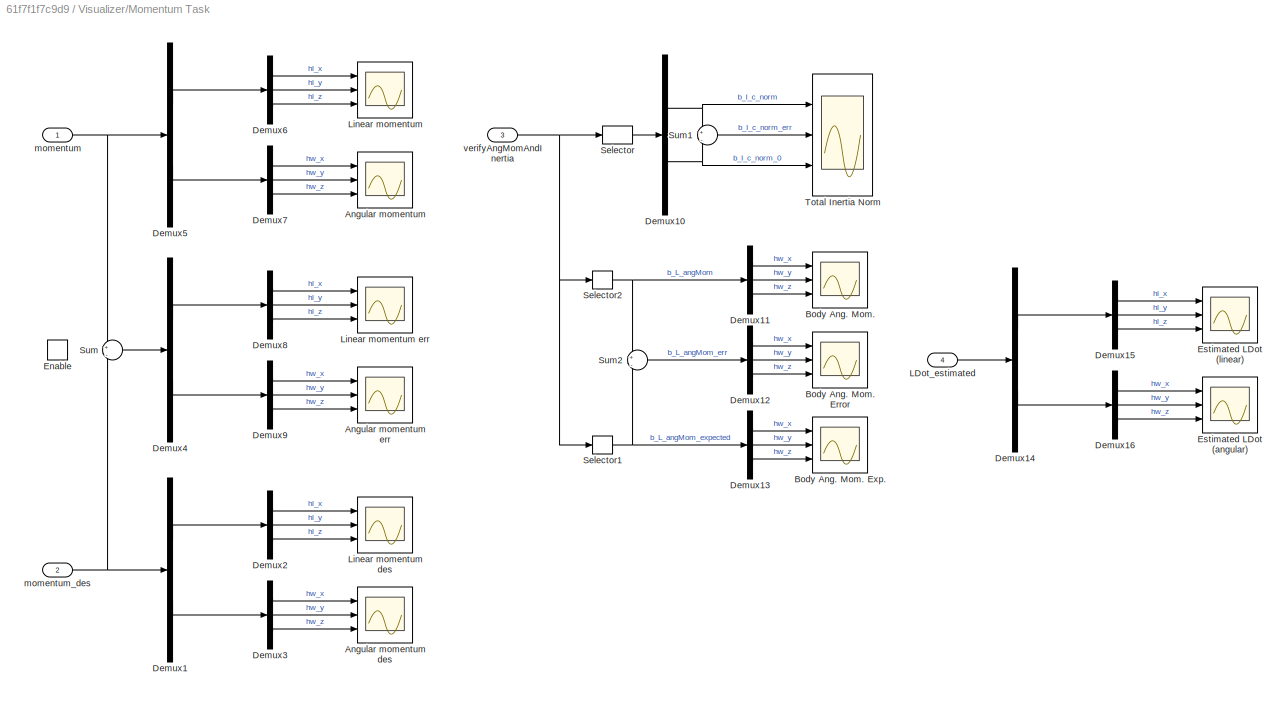
BLOCK [SubSystem] Visualizer/Momentum Task
  Ports = [4, 0, 1]
  RequestExecContextInheritance = off
BLOCK [Scope] Visualizer/Momentum Task/Angular momentum
  Floating = off
  NumInputPorts = 3
  Ports = [3]
  ScopeSpecificationString = Simulink.scopes.TimeScopeBlockCfg('CurrentConfiguration', extmgr.ConfigurationSet(extmgr.Configuration('Core','General UI',true),extmgr.Configuration('Core','Source UI',true),extmgr.Configuration('Sources','WiredSimulink',true,'DataLoggingVariableName','angMom_SCOPE','DataLogging',true,'DataLoggingSaveFormat','StructureWithTime'),extmgr.Configuration('Visuals','Time Domain',true,'SerializedDisplay...<+2785ch>
BLOCK [Scope] Visualizer/Momentum Task/Angular momentum des
  Floating = off
  NumInputPorts = 3
  Ports = [3]
  ScopeSpecificationString = Simulink.scopes.TimeScopeBlockCfg('CurrentConfiguration', extmgr.ConfigurationSet(extmgr.Configuration('Core','General UI',true),extmgr.Configuration('Core','Source UI',true),extmgr.Configuration('Sources','WiredSimulink',true,'DataLoggingVariableName','angMom_des_SCOPE','DataLogging',true,'DataLoggingSaveFormat','StructureWithTime'),extmgr.Configuration('Visuals','Time Domain',true,'SerializedDis...<+2790ch>
BLOCK [Scope] Visualizer/Momentum Task/Angular momentum err
  Floating = off
  NumInputPorts = 3
  Ports = [3]
  ScopeSpecificationString = Simulink.scopes.TimeScopeBlockCfg('CurrentConfiguration', extmgr.ConfigurationSet(extmgr.Configuration('Core','General UI',true),extmgr.Configuration('Core','Source UI',true),extmgr.Configuration('Sources','WiredSimulink',true,'DataLoggingVariableName','angMom_err_SCOPE','DataLogging',true,'DataLoggingSaveFormat','StructureWithTime'),extmgr.Configuration('Visuals','Time Domain',true,'SerializedDis...<+2786ch>
BLOCK [Scope] Visualizer/Momentum Task/Body Ang. Mom.
  Floating = off
  NumInputPorts = 3
  Ports = [3]
  ScopeSpecificationString = Simulink.scopes.TimeScopeBlockCfg('CurrentConfiguration', extmgr.ConfigurationSet(extmgr.Configuration('Core','General UI',true),extmgr.Configuration('Core','Source UI',true),extmgr.Configuration('Sources','WiredSimulink',true,'DataLoggingVariableName','bodyAngMom_SCOPE','DataLogging',true,'DataLoggingSaveFormat','StructureWithTime'),extmgr.Configuration('Visuals','Time Domain',true,'SerializedDis...<+2789ch>
BLOCK [Scope] Visualizer/Momentum Task/Body Ang. Mom. Error
  Floating = off
  NumInputPorts = 3
  Ports = [3]
  ScopeSpecificationString = Simulink.scopes.TimeScopeBlockCfg('CurrentConfiguration', extmgr.ConfigurationSet(extmgr.Configuration('Core','General UI',true),extmgr.Configuration('Core','Source UI',true),extmgr.Configuration('Sources','WiredSimulink',true,'DataLoggingVariableName','bodyAngMomErr_SCOPE','DataLogging',true,'DataLoggingSaveFormat','StructureWithTime'),extmgr.Configuration('Visuals','Time Domain',true,'Serialized...<+2798ch>
BLOCK [Scope] Visualizer/Momentum Task/Body Ang. Mom. Exp.
  Floating = off
  NumInputPorts = 3
  Ports = [3]
  ScopeSpecificationString = Simulink.scopes.TimeScopeBlockCfg('CurrentConfiguration', extmgr.ConfigurationSet(extmgr.Configuration('Core','General UI',true),extmgr.Configuration('Core','Source UI',true),extmgr.Configuration('Sources','WiredSimulink',true,'DataLoggingVariableName','bodyAngMomExp_SCOPE','DataLogging',true,'DataLoggingSaveFormat','StructureWithTime'),extmgr.Configuration('Visuals','Time Domain',true,'Serialized...<+2791ch>
BLOCK [Demux] Visualizer/Momentum Task/Demux1
  Outputs = 2
  Ports = [1, 2]
BLOCK [Demux] Visualizer/Momentum Task/Demux10
  Outputs = 2
  Ports = [1, 2]
BLOCK [Demux] Visualizer/Momentum Task/Demux11
  Outputs = 3
  Ports = [1, 3]
BLOCK [Demux] Visualizer/Momentum Task/Demux12
  Outputs = 3
  Ports = [1, 3]
BLOCK [Demux] Visualizer/Momentum Task/Demux13
  Outputs = 3
  Ports = [1, 3]
BLOCK [Demux] Visualizer/Momentum Task/Demux14
  Outputs = 2
  Ports = [1, 2]
BLOCK [Demux] Visualizer/Momentum Task/Demux15
  Outputs = 3
  Ports = [1, 3]
BLOCK [Demux] Visualizer/Momentum Task/Demux16
  Outputs = 3
  Ports = [1, 3]
BLOCK [Demux] Visualizer/Momentum Task/Demux2
  Outputs = 3
  Ports = [1, 3]
BLOCK [Demux] Visualizer/Momentum Task/Demux3
  Outputs = 3
  Ports = [1, 3]
BLOCK [Demux] Visualizer/Momentum Task/Demux4
  Outputs = 2
  Ports = [1, 2]
BLOCK [Demux] Visualizer/Momentum Task/Demux5
  Outputs = 2
  Ports = [1, 2]
BLOCK [Demux] Visualizer/Momentum Task/Demux6
  Outputs = 3
  Ports = [1, 3]
BLOCK [Demux] Visualizer/Momentum Task/Demux7
  Outputs = 3
  Ports = [1, 3]
BLOCK [Demux] Visualizer/Momentum Task/Demux8
  Outputs = 3
  Ports = [1, 3]
BLOCK [Demux] Visualizer/Momentum Task/Demux9
  Outputs = 3
  Ports = [1, 3]
BLOCK [EnablePort] Visualizer/Momentum Task/Enable
  Ports = []
BLOCK [Scope] Visualizer/Momentum Task/Estimated LDot (angular)
  Floating = off
  NumInputPorts = 3
  Ports = [3]
  ScopeSpecificationString = Simulink.scopes.TimeScopeBlockCfg('CurrentConfiguration', extmgr.ConfigurationSet(extmgr.Configuration('Core','General UI',true),extmgr.Configuration('Core','Source UI',true),extmgr.Configuration('Sources','WiredSimulink',true,'DataLoggingVariableName','LDotEstAngular_SCOPE','DataLogging',true,'DataLoggingSaveFormat','StructureWithTime'),extmgr.Configuration('Visuals','Time Domain',true,'Serialize...<+2795ch>
BLOCK [Scope] Visualizer/Momentum Task/Estimated LDot (linear)
  Floating = off
  NumInputPorts = 3
  Ports = [3]
  ScopeSpecificationString = Simulink.scopes.TimeScopeBlockCfg('CurrentConfiguration', extmgr.ConfigurationSet(extmgr.Configuration('Core','General UI',true),extmgr.Configuration('Core','Source UI',true),extmgr.Configuration('Sources','WiredSimulink',true,'DataLoggingVariableName','LDotEstLinear_SCOPE','DataLogging',true,'DataLoggingSaveFormat','StructureWithTime'),extmgr.Configuration('Visuals','Time Domain',true,'Serialized...<+2793ch>
BLOCK [Inport] Visualizer/Momentum Task/LDot_estimated
  Port = 4
BLOCK [Scope] Visualizer/Momentum Task/Linear momentum
  Floating = off
  NumInputPorts = 3
  Ports = [3]
  ScopeSpecificationString = Simulink.scopes.TimeScopeBlockCfg('CurrentConfiguration', extmgr.ConfigurationSet(extmgr.Configuration('Core','General UI',true),extmgr.Configuration('Core','Source UI',true),extmgr.Configuration('Sources','WiredSimulink',true,'DataLoggingVariableName','linearMom_SCOPE','DataLogging',true,'DataLoggingSaveFormat','StructureWithTime'),extmgr.Configuration('Visuals','Time Domain',true,'SerializedDisp...<+2788ch>
BLOCK [Scope] Visualizer/Momentum Task/Linear momentum des
  Floating = off
  NumInputPorts = 3
  Ports = [3]
  ScopeSpecificationString = Simulink.scopes.TimeScopeBlockCfg('CurrentConfiguration', extmgr.ConfigurationSet(extmgr.Configuration('Core','General UI',true),extmgr.Configuration('Core','Source UI',true),extmgr.Configuration('Sources','WiredSimulink',true,'DataLoggingVariableName','linMom_des_SCOPE','DataLogging',true,'DataLoggingSaveFormat','StructureWithTime'),extmgr.Configuration('Visuals','Time Domain',true,'SerializedDis...<+2791ch>
BLOCK [Scope] Visualizer/Momentum Task/Linear momentum err
  Floating = off
  NumInputPorts = 3
  Ports = [3]
  ScopeSpecificationString = Simulink.scopes.TimeScopeBlockCfg('CurrentConfiguration', extmgr.ConfigurationSet(extmgr.Configuration('Core','General UI',true),extmgr.Configuration('Core','Source UI',true),extmgr.Configuration('Sources','WiredSimulink',true,'DataLoggingVariableName','linMom_err_SCOPE','DataLogging',true,'DataLoggingSaveFormat','StructureWithTime'),extmgr.Configuration('Visuals','Time Domain',true,'SerializedDis...<+2788ch>
BLOCK [Selector] Visualizer/Momentum Task/Selector
  IndexOptions = Index vector (dialog),Index vector (dialog)
  Indices = [1],[1 2]
  InputPortWidth = 3
  NumberOfDimensions = 2
  OutputSizes = 1,1
  Ports = [1, 1]
BLOCK [Selector] Visualizer/Momentum Task/Selector1
  IndexOptions = Index vector (dialog),Index vector (dialog)
  Indices = [2 3 4],[2]
  InputPortWidth = 3
  NumberOfDimensions = 2
  OutputSizes = 1,1
  Ports = [1, 1]
BLOCK [Selector] Visualizer/Momentum Task/Selector2
  IndexOptions = Index vector (dialog),Index vector (dialog)
  Indices = [2 3 4],[1]
  InputPortWidth = 3
  NumberOfDimensions = 2
  OutputSizes = 1,1
  Ports = [1, 1]
BLOCK [Sum] Visualizer/Momentum Task/Sum
  Inputs = +|-
  Ports = [2, 1]
BLOCK [Sum] Visualizer/Momentum Task/Sum1
  Inputs = +|-
  Ports = [2, 1]
BLOCK [Sum] Visualizer/Momentum Task/Sum2
  Inputs = +|-
  Ports = [2, 1]
BLOCK [Scope] Visualizer/Momentum Task/Total Inertia Norm
  Floating = off
  NumInputPorts = 3
  Ports = [3]
  ScopeSpecificationString = Simulink.scopes.TimeScopeBlockCfg('CurrentConfiguration', extmgr.ConfigurationSet(extmgr.Configuration('Core','General UI',true),extmgr.Configuration('Core','Source UI',true),extmgr.Configuration('Sources','WiredSimulink',true,'DataLoggingVariableName','centrInertiaNorm_SCOPE','DataLogging',true,'DataLoggingSaveFormat','StructureWithTime'),extmgr.Configuration('Visuals','Time Domain',true,'Seriali...<+2815ch>
BLOCK [Inport] Visualizer/Momentum Task/momentum
BLOCK [Inport] Visualizer/Momentum Task/momentum_des
  Port = 2
BLOCK [Inport] Visualizer/Momentum Task/verifyAngMomAndInertia
  Port = 3
BLOCK [Constant] Visualizer/ON_GAZEBO 4
  Value = Config.SCOPES_WRENCHES
BLOCK [SubSystem] Visualizer/QP Status
  Ports = [2, 0, 1]
  RequestExecContextInheritance = off
BLOCK [EnablePort] Visualizer/QP Status/Enable
  Ports = []
BLOCK [Scope] Visualizer/QP Status/QP momentum
  Floating = off
  NumInputPorts = 1
  Ports = [1]
  ScopeSpecificationString = Simulink.scopes.TimeScopeBlockCfg('CurrentConfiguration', extmgr.ConfigurationSet(extmgr.Configuration('Core','General UI',true),extmgr.Configuration('Core','Source UI',true),extmgr.Configuration('Sources','WiredSimulink',true,'DataLoggingVariableName','QPStatusMomentum_SCOPE','DataLogging',true,'DataLoggingSaveFormat','StructureWithTime'),extmgr.Configuration('Visuals','Time Domain',true,'Seriali...<+1512ch>
BLOCK [Scope] Visualizer/QP Status/QP torques
  Floating = off
  NumInputPorts = 1
  Ports = [1]
  ScopeSpecificationString = Simulink.scopes.TimeScopeBlockCfg('CurrentConfiguration', extmgr.ConfigurationSet(extmgr.Configuration('Core','General UI',true),extmgr.Configuration('Core','Source UI',true),extmgr.Configuration('Sources','WiredSimulink',true,'DataLoggingVariableName','QPStatusTorques_SCOPE','DataLogging',true,'DataLoggingSaveFormat','StructureWithTime'),extmgr.Configuration('Visuals','Time Domain',true,'Serializ...<+1509ch>
BLOCK [Inport] Visualizer/QP Status/QPStatus_momentumControl
BLOCK [Inport] Visualizer/QP Status/QPStatus_torqueControl
  Port = 2
BLOCK [SubSystem] Visualizer/Task and Base Frame Kinematics
  Ports = [4, 0, 1]
  RequestExecContextInheritance = off
BLOCK [Scope] Visualizer/Task and Base Frame Kinematics/Base angular velocity
  Floating = off
  NumInputPorts = 3
  Ports = [3]
  ScopeSpecificationString = Simulink.scopes.TimeScopeBlockCfg('CurrentConfiguration', extmgr.ConfigurationSet(extmgr.Configuration('Core','General UI',true),extmgr.Configuration('Core','Source UI',true),extmgr.Configuration('Sources','WiredSimulink',true,'DataLoggingVariableName','baseAngVel_SCOPE','DataLogging',true,'DataLoggingSaveFormat','StructureWithTime'),extmgr.Configuration('Visuals','Time Domain',true,'SerializedDis...<+2788ch>
BLOCK [Scope] Visualizer/Task and Base Frame Kinematics/Base linear velocity
  Floating = off
  NumInputPorts = 3
  Ports = [3]
  ScopeSpecificationString = Simulink.scopes.TimeScopeBlockCfg('CurrentConfiguration', extmgr.ConfigurationSet(extmgr.Configuration('Core','General UI',true),extmgr.Configuration('Core','Source UI',true),extmgr.Configuration('Sources','WiredSimulink',true,'DataLoggingVariableName','baseVel_SCOPE','DataLogging',true,'DataLoggingSaveFormat','StructureWithTime'),extmgr.Configuration('Visuals','Time Domain',true,'SerializedDispla...<+2782ch>
BLOCK [Scope] Visualizer/Task and Base Frame Kinematics/Base position
  Floating = off
  NumInputPorts = 3
  Ports = [3]
  ScopeSpecificationString = Simulink.scopes.TimeScopeBlockCfg('CurrentConfiguration', extmgr.ConfigurationSet(extmgr.Configuration('Core','General UI',true),extmgr.Configuration('Core','Source UI',true),extmgr.Configuration('Sources','WiredSimulink',true,'DataLoggingVariableName','basePos_SCOPE','DataLogging',true,'DataLoggingSaveFormat','StructureWithTime'),extmgr.Configuration('Visuals','Time Domain',true,'SerializedDispla...<+2781ch>
BLOCK [Scope] Visualizer/Task and Base Frame Kinematics/Base rotation
  Floating = off
  NumInputPorts = 3
  Ports = [3]
  ScopeSpecificationString = Simulink.scopes.TimeScopeBlockCfg('CurrentConfiguration', extmgr.ConfigurationSet(extmgr.Configuration('Core','General UI',true),extmgr.Configuration('Core','Source UI',true),extmgr.Configuration('Sources','WiredSimulink',true,'DataLoggingVariableName','baseRot_SCOPE','DataLogging',true,'DataLoggingSaveFormat','StructureWithTime'),extmgr.Configuration('Visuals','Time Domain',true,'SerializedDispla...<+2788ch>
BLOCK [Scope] Visualizer/Task and Base Frame Kinematics/Base rotation desired
  Floating = off
  NumInputPorts = 3
  Ports = [3]
  ScopeSpecificationString = Simulink.scopes.TimeScopeBlockCfg('CurrentConfiguration', extmgr.ConfigurationSet(extmgr.Configuration('Core','General UI',true),extmgr.Configuration('Core','Source UI',true),extmgr.Configuration('Sources','WiredSimulink',true,'DataLoggingVariableName','baseRot_des_SCOPE','DataLogging',true,'DataLoggingSaveFormat','StructureWithTime'),extmgr.Configuration('Visuals','Time Domain',true,'SerializedDi...<+2792ch>
BLOCK [Scope] Visualizer/Task and Base Frame Kinematics/Base rotation error
  Floating = off
  NumInputPorts = 3
  Ports = [3]
  ScopeSpecificationString = Simulink.scopes.TimeScopeBlockCfg('CurrentConfiguration', extmgr.ConfigurationSet(extmgr.Configuration('Core','General UI',true),extmgr.Configuration('Core','Source UI',true),extmgr.Configuration('Sources','WiredSimulink',true,'DataLoggingVariableName','baseRot_err_SCOPE','DataLogging',true,'DataLoggingSaveFormat','StructureWithTime'),extmgr.Configuration('Visuals','Time Domain',true,'SerializedDi...<+2790ch>
BLOCK [Scope] Visualizer/Task and Base Frame Kinematics/Base rotation error norm
  Floating = off
  NumInputPorts = 1
  Ports = [1]
  ScopeSpecificationString = Simulink.scopes.TimeScopeBlockCfg('CurrentConfiguration', extmgr.ConfigurationSet(extmgr.Configuration('Core','General UI',true),extmgr.Configuration('Core','Source UI',true),extmgr.Configuration('Sources','WiredSimulink',true,'DataLoggingVariableName','baseRotErrNorm_SCOPE','DataLogging',true,'DataLoggingSaveFormat','StructureWithTime'),extmgr.Configuration('Visuals','Time Domain',true,'Serialize...<+1573ch>
BLOCK [SubSystem] Visualizer/Task and Base Frame Kinematics/Combine Rotations
  Ports = [6]
  RequestExecContextInheritance = off
BLOCK [Mux] Visualizer/Task and Base Frame Kinematics/Combine Rotations/Mux
  DisplayOption = bar
  Inputs = 2
  Ports = [2, 1]
BLOCK [Mux] Visualizer/Task and Base Frame Kinematics/Combine Rotations/Mux1
  DisplayOption = bar
  Inputs = 2
  Ports = [2, 1]
BLOCK [Mux] Visualizer/Task and Base Frame Kinematics/Combine Rotations/Mux2
  DisplayOption = bar
  Inputs = 2
  Ports = [2, 1]
BLOCK [Scope] Visualizer/Task and Base Frame Kinematics/Combine Rotations/Task rotation combined
  Floating = off
  NumInputPorts = 3
  Ports = [3]
  ScopeSpecificationString = Simulink.scopes.TimeScopeBlockCfg('CurrentConfiguration', extmgr.ConfigurationSet(extmgr.Configuration('Core','General UI',true),extmgr.Configuration('Core','Source UI',true),extmgr.Configuration('Sources','WiredSimulink',true,'DataLoggingVariableName','data1','DataLoggingSaveFormat','StructureWithTime'),extmgr.Configuration('Visuals','Time Domain',true,'SerializedDisplays',{struct('MinYLimReal','...<+2796ch>
BLOCK [Inport] Visualizer/Task and Base Frame Kinematics/Combine Rotations/pitch
  Port = 2
BLOCK [Inport] Visualizer/Task and Base Frame Kinematics/Combine Rotations/pitch_des
  Port = 5
BLOCK [Inport] Visualizer/Task and Base Frame Kinematics/Combine Rotations/roll
BLOCK [Inport] Visualizer/Task and Base Frame Kinematics/Combine Rotations/roll_des
  Port = 4
BLOCK [Inport] Visualizer/Task and Base Frame Kinematics/Combine Rotations/yaw
  Port = 3
BLOCK [Inport] Visualizer/Task and Base Frame Kinematics/Combine Rotations/yaw_des
  Port = 6
BLOCK [Demux] Visualizer/Task and Base Frame Kinematics/Demux
  Outputs = 2
  Ports = [1, 2]
BLOCK [Demux] Visualizer/Task and Base Frame Kinematics/Demux1
  Outputs = 3
  Ports = [1, 3]
BLOCK [Demux] Visualizer/Task and Base Frame Kinematics/Demux2
  Outputs = 3
  Ports = [1, 3]
BLOCK [Demux] Visualizer/Task and Base Frame Kinematics/Demux3
  Outputs = 3
  Ports = [1, 3]
BLOCK [Demux] Visualizer/Task and Base Frame Kinematics/Demux5
  Outputs = 3
  Ports = [1, 3]
BLOCK [Demux] Visualizer/Task and Base Frame Kinematics/Demux6
  Outputs = 3
  Ports = [1, 3]
BLOCK [Demux] Visualizer/Task and Base Frame Kinematics/Demux7
  Outputs = 3
  Ports = [1, 3]
BLOCK [EnablePort] Visualizer/Task and Base Frame Kinematics/Enable
  Ports = []
BLOCK [Gain] Visualizer/Task and Base Frame Kinematics/Gain1
  Gain = 180/pi
BLOCK [Gain] Visualizer/Task and Base Frame Kinematics/Gain2
  Gain = 180/pi
BLOCK [Gain] Visualizer/Task and Base Frame Kinematics/Gain3
  Gain = 180/pi
BLOCK [SubSystem] Visualizer/Task and Base Frame Kinematics/Get RPY error norm
  ErrorFcn = Stateflow.Translate.translate
  PermitHierarchicalResolution = ExplicitOnly
  Ports = [1, 1]
  RequestExecContextInheritance = off
  SFBlockType = MATLAB Function
  TreatAsAtomicUnit = on
BLOCK [Demux] Visualizer/Task and Base Frame Kinematics/Get RPY error norm/ Demux 
  Outputs = 1
  Ports = [1, 1]
BLOCK [S-Function] Visualizer/Task and Base Frame Kinematics/Get RPY error norm/ SFunction 
  EnableBusSupport = on
  FunctionName = sf_sfun
  PortCounts = [1 2]
  Ports = [1, 2]
  SFcnIsStateOwnerBlock = off
  SFunctionDeploymentMode = off
  Tag = Stateflow S-Function 7
BLOCK [Terminator] Visualizer/Task and Base Frame Kinematics/Get RPY error norm/ Terminator 
BLOCK [Outport] Visualizer/Task and Base Frame Kinematics/Get RPY error norm/rotErr_norm
  VectorParamsAs1DForOutWhenUnconnected = off
BLOCK [Inport] Visualizer/Task and Base Frame Kinematics/Get RPY error norm/rot_err
BLOCK [SubSystem] Visualizer/Task and Base Frame Kinematics/Get RPY from rotation matrix
  ErrorFcn = Stateflow.Translate.translate
  PermitHierarchicalResolution = ExplicitOnly
  Ports = [1, 1]
  RequestExecContextInheritance = off
  SFBlockType = MATLAB Function
  TreatAsAtomicUnit = on
BLOCK [SubSystem] Visualizer/Task and Base Frame Kinematics/Get RPY from rotation matrix 
  ErrorFcn = Stateflow.Translate.translate
  PermitHierarchicalResolution = ExplicitOnly
  Ports = [1, 1]
  RequestExecContextInheritance = off
  SFBlockType = MATLAB Function
  TreatAsAtomicUnit = on
BLOCK [Demux] Visualizer/Task and Base Frame Kinematics/Get RPY from rotation matrix / Demux 
  Outputs = 1
  Ports = [1, 1]
BLOCK [S-Function] Visualizer/Task and Base Frame Kinematics/Get RPY from rotation matrix / SFunction 
  EnableBusSupport = on
  FunctionName = sf_sfun
  PortCounts = [1 2]
  Ports = [1, 2]
  SFcnIsStateOwnerBlock = off
  SFunctionDeploymentMode = off
  Tag = Stateflow S-Function 4
BLOCK [Terminator] Visualizer/Task and Base Frame Kinematics/Get RPY from rotation matrix / Terminator 
BLOCK [Outport] Visualizer/Task and Base Frame Kinematics/Get RPY from rotation matrix /rollPitchYaw
  VectorParamsAs1DForOutWhenUnconnected = off
BLOCK [Inport] Visualizer/Task and Base Frame Kinematics/Get RPY from rotation matrix /w_R_b
BLOCK [Demux] Visualizer/Task and Base Frame Kinematics/Get RPY from rotation matrix/ Demux 
  Outputs = 1
  Ports = [1, 1]
BLOCK [S-Function] Visualizer/Task and Base Frame Kinematics/Get RPY from rotation matrix/ SFunction 
  EnableBusSupport = on
  FunctionName = sf_sfun
  PortCounts = [1 2]
  Ports = [1, 2]
  SFcnIsStateOwnerBlock = off
  SFunctionDeploymentMode = off
  Tag = Stateflow S-Function 6
BLOCK [Terminator] Visualizer/Task and Base Frame Kinematics/Get RPY from rotation matrix/ Terminator 
BLOCK [Outport] Visualizer/Task and Base Frame Kinematics/Get RPY from rotation matrix/rollPitchYaw
  VectorParamsAs1DForOutWhenUnconnected = off
BLOCK [Inport] Visualizer/Task and Base Frame Kinematics/Get RPY from rotation matrix/w_R_b
BLOCK [SubSystem] Visualizer/Task and Base Frame Kinematics/MATLAB Function1
  ErrorFcn = Stateflow.Translate.translate
  PermitHierarchicalResolution = ExplicitOnly
  Ports = [1, 1]
  RequestExecContextInheritance = off
  SFBlockType = MATLAB Function
  TreatAsAtomicUnit = on
BLOCK [Demux] Visualizer/Task and Base Frame Kinematics/MATLAB Function1/ Demux 
  Outputs = 1
  Ports = [1, 1]
BLOCK [S-Function] Visualizer/Task and Base Frame Kinematics/MATLAB Function1/ SFunction 
  EnableBusSupport = on
  FunctionName = sf_sfun
  PortCounts = [1 2]
  Ports = [1, 2]
  SFcnIsStateOwnerBlock = off
  SFunctionDeploymentMode = off
  Tag = Stateflow S-Function 1
BLOCK [Terminator] Visualizer/Task and Base Frame Kinematics/MATLAB Function1/ Terminator 
BLOCK [Outport] Visualizer/Task and Base Frame Kinematics/MATLAB Function1/RPY_Corr
  VectorParamsAs1DForOutWhenUnconnected = off
BLOCK [Inport] Visualizer/Task and Base Frame Kinematics/MATLAB Function1/rollPitchYaw
BLOCK [SubSystem] Visualizer/Task and Base Frame Kinematics/MATLAB Function2
  ErrorFcn = Stateflow.Translate.translate
  PermitHierarchicalResolution = ExplicitOnly
  Ports = [1, 1]
  RequestExecContextInheritance = off
  SFBlockType = MATLAB Function
  TreatAsAtomicUnit = on
BLOCK [Demux] Visualizer/Task and Base Frame Kinematics/MATLAB Function2/ Demux 
  Outputs = 1
  Ports = [1, 1]
BLOCK [S-Function] Visualizer/Task and Base Frame Kinematics/MATLAB Function2/ SFunction 
  EnableBusSupport = on
  FunctionName = sf_sfun
  PortCounts = [1 2]
  Ports = [1, 2]
  SFcnIsStateOwnerBlock = off
  SFunctionDeploymentMode = off
  Tag = Stateflow S-Function 10
BLOCK [Terminator] Visualizer/Task and Base Frame Kinematics/MATLAB Function2/ Terminator 
BLOCK [Outport] Visualizer/Task and Base Frame Kinematics/MATLAB Function2/RPY_Corr
  VectorParamsAs1DForOutWhenUnconnected = off
BLOCK [Inport] Visualizer/Task and Base Frame Kinematics/MATLAB Function2/rollPitchYaw
BLOCK [SubSystem] Visualizer/Task and Base Frame Kinematics/MATLAB Function3
  ErrorFcn = Stateflow.Translate.translate
  PermitHierarchicalResolution = ExplicitOnly
  Ports = [1, 1]
  RequestExecContextInheritance = off
  SFBlockType = MATLAB Function
  TreatAsAtomicUnit = on
BLOCK [Demux] Visualizer/Task and Base Frame Kinematics/MATLAB Function3/ Demux 
  Outputs = 1
  Ports = [1, 1]
BLOCK [S-Function] Visualizer/Task and Base Frame Kinematics/MATLAB Function3/ SFunction 
  EnableBusSupport = on
  FunctionName = sf_sfun
  PortCounts = [1 2]
  Ports = [1, 2]
  SFcnIsStateOwnerBlock = off
  SFunctionDeploymentMode = off
  Tag = Stateflow S-Function 3
BLOCK [Terminator] Visualizer/Task and Base Frame Kinematics/MATLAB Function3/ Terminator 
BLOCK [Outport] Visualizer/Task and Base Frame Kinematics/MATLAB Function3/RPY_Corr
  VectorParamsAs1DForOutWhenUnconnected = off
BLOCK [Inport] Visualizer/Task and Base Frame Kinematics/MATLAB Function3/rollPitchYaw
BLOCK [Selector] Visualizer/Task and Base Frame Kinematics/Selector
  IndexOptions = Index vector (dialog),Index vector (dialog)
  Indices = [1:3],4
  InputPortWidth = 3
  NumberOfDimensions = 2
  OutputSizes = 1,1
  Ports = [1, 1]
BLOCK [Selector] Visualizer/Task and Base Frame Kinematics/Selector2
  IndexOptions = Index vector (dialog),Index vector (dialog)
  Indices = [1:3],[1:3]
  InputPortWidth = 3
  NumberOfDimensions = 2
  OutputSizes = 1,1
  Ports = [1, 1]
BLOCK [Sum] Visualizer/Task and Base Frame Kinematics/Sum
  Inputs = +-|
  Ports = [2, 1]
BLOCK [Inport] Visualizer/Task and Base Frame Kinematics/baseTwist
  Port = 2
BLOCK [Inport] Visualizer/Task and Base Frame Kinematics/rot_vel_acc_jerk_base_des
  Port = 3
BLOCK [Inport] Visualizer/Task and Base Frame Kinematics/w_H_b
BLOCK [Inport] Visualizer/Task and Base Frame Kinematics/w_R_b
  Port = 4
BLOCK [SubSystem] Visualizer/Visualize external wrenches  
  Ports = [4, 0, 1]
  RequestExecContextInheritance = off
BLOCK [Constant] Visualizer/Visualize external wrenches  /Constant1
  Value = Config.minVerticalForces
BLOCK [Demux] Visualizer/Visualize external wrenches  /Demux
  Outputs = [3;3]
  Ports = [1, 2]
BLOCK [Demux] Visualizer/Visualize external wrenches  /Demux1
  Outputs = [3;3]
  Ports = [1, 2]
BLOCK [Demux] Visualizer/Visualize external wrenches  /Demux10
  Outputs = [3;3]
  Ports = [1, 2]
BLOCK [Demux] Visualizer/Visualize external wrenches  /Demux2
  Outputs = [6;6]
  Ports = [1, 2]
BLOCK [Demux] Visualizer/Visualize external wrenches  /Demux3
  Outputs = [3;3]
  Ports = [1, 2]
BLOCK [Demux] Visualizer/Visualize external wrenches  /Demux4
  Outputs = [3;3]
  Ports = [1, 2]
BLOCK [Demux] Visualizer/Visualize external wrenches  /Demux8
  Outputs = [6;6]
  Ports = [1, 2]
BLOCK [Demux] Visualizer/Visualize external wrenches  /Demux9
  Outputs = [3;3]
  Ports = [1, 2]
BLOCK [EnablePort] Visualizer/Visualize external wrenches  /Enable
  Ports = []
BLOCK [Inport] Visualizer/Visualize external wrenches  /contactForcesDot
  Port = 4
BLOCK [Inport] Visualizer/Visualize external wrenches  /desiredContactWrenches
  Port = 3
BLOCK [Scope] Visualizer/Visualize external wrenches  /left foot des fDot
  Floating = off
  NumInputPorts = 2
  Ports = [2]
  ScopeSpecificationString = Simulink.scopes.TimeScopeBlockCfg('CurrentConfiguration', extmgr.ConfigurationSet(extmgr.Configuration('Core','General UI',true,'FigureColor',[0.156862745098039 0.156862745098039 0.156862745098039]),extmgr.Configuration('Core','Source UI',true),extmgr.Configuration('Sources','WiredSimulink',true,'DataLogging',true,'DataLoggingVariableName','LFoot_fDotDes_SCOPE','DataLoggingSaveFormat','StructureWi...<+4008ch>
BLOCK [Scope] Visualizer/Visualize external wrenches  /left foot des wrench
  Floating = off
  NumInputPorts = 2
  Ports = [2]
  ScopeSpecificationString = Simulink.scopes.TimeScopeBlockCfg('CurrentConfiguration', extmgr.ConfigurationSet(extmgr.Configuration('Core','General UI',true,'FigureColor',[0.156862745098039 0.156862745098039 0.156862745098039]),extmgr.Configuration('Core','Source UI',true),extmgr.Configuration('Sources','WiredSimulink',true,'DataLogging',true,'DataLoggingVariableName','desWrenchLFoot_SCOPE','DataLoggingSaveFormat','StructureW...<+4000ch>
BLOCK [Scope] Visualizer/Visualize external wrenches  /left foot ext wrench
  Floating = off
  NumInputPorts = 3
  Ports = [3]
  ScopeSpecificationString = Simulink.scopes.TimeScopeBlockCfg('CurrentConfiguration', extmgr.ConfigurationSet(extmgr.Configuration('Core','General UI',true,'FigureColor',[0.156862745098039 0.156862745098039 0.156862745098039]),extmgr.Configuration('Core','Source UI',true),extmgr.Configuration('Sources','WiredSimulink',true,'DataLogging',true,'DataLoggingVariableName','leftFootExtWrench_SCOPE','DataLoggingSaveFormat','Structu...<+5205ch>
BLOCK [Scope] Visualizer/Visualize external wrenches  /right foot des fDot
  Floating = off
  NumInputPorts = 2
  Ports = [2]
  ScopeSpecificationString = Simulink.scopes.TimeScopeBlockCfg('CurrentConfiguration', extmgr.ConfigurationSet(extmgr.Configuration('Core','General UI',true,'FigureColor',[0.156862745098039 0.156862745098039 0.156862745098039]),extmgr.Configuration('Core','Source UI',true),extmgr.Configuration('Sources','WiredSimulink',true,'DataLogging',true,'DataLoggingVariableName','RFoot_fDotDes_SCOPE','DataLoggingSaveFormat','StructureWi...<+4011ch>
BLOCK [Scope] Visualizer/Visualize external wrenches  /right foot des wrench
  Floating = off
  NumInputPorts = 2
  Ports = [2]
  ScopeSpecificationString = Simulink.scopes.TimeScopeBlockCfg('CurrentConfiguration', extmgr.ConfigurationSet(extmgr.Configuration('Core','General UI',true,'FigureColor',[0.156862745098039 0.156862745098039 0.156862745098039]),extmgr.Configuration('Core','Source UI',true),extmgr.Configuration('Sources','WiredSimulink',true,'DataLogging',true,'DataLoggingVariableName','desWrenchRFoot_SCOPE','DataLoggingSaveFormat','StructureW...<+4004ch>
BLOCK [Scope] Visualizer/Visualize external wrenches  /right foot ext wrench
  Floating = off
  NumInputPorts = 3
  Ports = [3]
  ScopeSpecificationString = Simulink.scopes.TimeScopeBlockCfg('CurrentConfiguration', extmgr.ConfigurationSet(extmgr.Configuration('Core','General UI',true,'FigureColor',[0.156862745098039 0.156862745098039 0.156862745098039]),extmgr.Configuration('Core','Source UI',true),extmgr.Configuration('Sources','WiredSimulink',true,'DataLogging',true,'DataLoggingVariableName','rightFootExtWrench_SCOPE','DataLoggingSaveFormat','Struct...<+5209ch>
BLOCK [Inport] Visualizer/Visualize external wrenches  /wrench_LFoot
BLOCK [Inport] Visualizer/Visualize external wrenches  /wrench_right
  Port = 2
BLOCK [SubSystem] synchronizer
  Ports = []
  RequestExecContextInheritance = off
BLOCK [SubSystem] synchronizer/GAZEBO_SYNCHRONIZER
  Ports = [0, 0, 1]
  RequestExecContextInheritance = off
BLOCK [EnablePort] synchronizer/GAZEBO_SYNCHRONIZER/Enable
  Ports = []
BLOCK [Reference] synchronizer/GAZEBO_SYNCHRONIZER/Simulator Synchronizer  REF=WBToolboxLibrary/Utilities/Simulator Synchronizer
  Ports = []
  SourceBlock = WBToolboxLibrary/Utilities/Simulator Synchronizer
  SourceProductName = WholeBodyToolbox
  SourceType = Simulator Synchronizer
BLOCK [Logic] synchronizer/Logical Operator
  AllPortsSameDT = off
  NameLocation = top
  Operator = NOT
  OutDataTypeStr = boolean
  Ports = [1, 1]
BLOCK [Constant] synchronizer/ON_GAZEBO 
  NameLocation = top
  Value = Config.ON_GAZEBO
BLOCK [SubSystem] synchronizer/REAL_TIME_SYNC
  Ports = [0, 0, 1]
  RequestExecContextInheritance = off
BLOCK [EnablePort] synchronizer/REAL_TIME_SYNC/Enable
  Ports = []
BLOCK [Reference] synchronizer/REAL_TIME_SYNC/Real Time Synchronizer  REF=WBToolboxLibrary/Utilities/Real Time Synchronizer
  Ports = []
  SourceBlock = WBToolboxLibrary/Utilities/Real Time Synchronizer
  SourceProductName = WholeBodyToolbox
  SourceType = Real Time Synchronizer
BLOCK [Reference] wrench LFoot  REF=WBToolboxLibrary/Utilities/YarpRead
  Ports = [0, 1]
  SourceBlock = WBToolboxLibrary/Utilities/YarpRead
  SourceProductName = WholeBodyToolbox
  SourceType = YARP Read
BLOCK [Reference] wrench RFoot  REF=WBToolboxLibrary/Utilities/YarpRead
  Ports = [0, 1]
  SourceBlock = WBToolboxLibrary/Utilities/YarpRead
  SourceProductName = WholeBodyToolbox
  SourceType = YARP Read
LINE FLIGHT CONTROLLER (CORE) V3.0/Compute Fuel Consumption:1 -> FLIGHT CONTROLLER (CORE) V3.0/Goto:1
LINE FLIGHT CONTROLLER (CORE) V3.0/Constant1:1 -> FLIGHT CONTROLLER (CORE) V3.0/UpdateGuiData:enable
LINE FLIGHT CONTROLLER (CORE) V3.0/Dynamics and Kinematics:1 -> FLIGHT CONTROLLER (CORE) V3.0/Flight Controller RAL-HUMANOIDS V3.0:4
NET FLIGHT CONTROLLER (CORE) V3.0/Dynamics and Kinematics:2 -> FLIGHT CONTROLLER (CORE) V3.0/Estimated or Measured Thrusts:7, FLIGHT CONTROLLER (CORE) V3.0/Flight Controller RAL-HUMANOIDS V3.0:5
LINE FLIGHT CONTROLLER (CORE) V3.0/Estimated or Measured Thrusts/ Thrust Estimator/Bus Selector:1 -> FLIGHT CONTROLLER (CORE) V3.0/Estimated or Measured Thrusts/ Thrust Estimator/EKF-MOMENTUM_JET_FEET-CMM_FEET:4
LINE FLIGHT CONTROLLER (CORE) V3.0/Estimated or Measured Thrusts/ Thrust Estimator/Constant1:1 -> FLIGHT CONTROLLER (CORE) V3.0/Estimated or Measured Thrusts/ Thrust Estimator/Manual Switch:1
LINE FLIGHT CONTROLLER (CORE) V3.0/Estimated or Measured Thrusts/ Thrust Estimator/Constant:1 -> FLIGHT CONTROLLER (CORE) V3.0/Estimated or Measured Thrusts/ Thrust Estimator/Manual Switch:2
LINE FLIGHT CONTROLLER (CORE) V3.0/Estimated or Measured Thrusts/ Thrust Estimator/EKF-MOMENTUM_JET_FEET-CMM_FEET:1 -> FLIGHT CONTROLLER (CORE) V3.0/Estimated or Measured Thrusts/ Thrust Estimator/jetIntensities_Estimated:1
LINE FLIGHT CONTROLLER (CORE) V3.0/Estimated or Measured Thrusts/ Thrust Estimator/EKF-MOMENTUM_JET_FEET-CMM_FEET:2 -> FLIGHT CONTROLLER (CORE) V3.0/Estimated or Measured Thrusts/ Thrust Estimator/jetIntensitiesDot_Estimated:1
LINE FLIGHT CONTROLLER (CORE) V3.0/Estimated or Measured Thrusts/ Thrust Estimator/EKF-MOMENTUM_JET_FEET-CMM_FEET:3 -> FLIGHT CONTROLLER (CORE) V3.0/Estimated or Measured Thrusts/ Thrust Estimator/Terminator:1
LINE FLIGHT CONTROLLER (CORE) V3.0/Estimated or Measured Thrusts/ Thrust Estimator/EKF-MOMENTUM_JET_FEET-CMM_FEET:4 -> FLIGHT CONTROLLER (CORE) V3.0/Estimated or Measured Thrusts/ Thrust Estimator/Terminator1:1
LINE FLIGHT CONTROLLER (CORE) V3.0/Estimated or Measured Thrusts/ Thrust Estimator/EKF-MOMENTUM_JET_FEET-CMM_FEET:5 -> FLIGHT CONTROLLER (CORE) V3.0/Estimated or Measured Thrusts/ Thrust Estimator/Terminator2:1
LINE FLIGHT CONTROLLER (CORE) V3.0/Estimated or Measured Thrusts/ Thrust Estimator/Manual Switch:1 -> FLIGHT CONTROLLER (CORE) V3.0/Estimated or Measured Thrusts/ Thrust Estimator/EKF-MOMENTUM_JET_FEET-CMM_FEET:7
LINE FLIGHT CONTROLLER (CORE) V3.0/Estimated or Measured Thrusts/ Thrust Estimator/Unit Delay:1 -> FLIGHT CONTROLLER (CORE) V3.0/Estimated or Measured Thrusts/ Thrust Estimator/EKF-MOMENTUM_JET_FEET-CMM_FEET:1
LINE FLIGHT CONTROLLER (CORE) V3.0/Estimated or Measured Thrusts/ Thrust Estimator/dynamics:1 -> FLIGHT CONTROLLER (CORE) V3.0/Estimated or Measured Thrusts/ Thrust Estimator/Bus Selector:1
LINE FLIGHT CONTROLLER (CORE) V3.0/Estimated or Measured Thrusts/ Thrust Estimator/jointPos:1 -> FLIGHT CONTROLLER (CORE) V3.0/Estimated or Measured Thrusts/ Thrust Estimator/EKF-MOMENTUM_JET_FEET-CMM_FEET:2
LINE FLIGHT CONTROLLER (CORE) V3.0/Estimated or Measured Thrusts/ Thrust Estimator/throttle:1 -> FLIGHT CONTROLLER (CORE) V3.0/Estimated or Measured Thrusts/ Thrust Estimator/Unit Delay:1
LINE FLIGHT CONTROLLER (CORE) V3.0/Estimated or Measured Thrusts/ Thrust Estimator/w_H_b:1 -> FLIGHT CONTROLLER (CORE) V3.0/Estimated or Measured Thrusts/ Thrust Estimator/EKF-MOMENTUM_JET_FEET-CMM_FEET:3
LINE FLIGHT CONTROLLER (CORE) V3.0/Estimated or Measured Thrusts/ Thrust Estimator/wrench_LFoot:1 -> FLIGHT CONTROLLER (CORE) V3.0/Estimated or Measured Thrusts/ Thrust Estimator/EKF-MOMENTUM_JET_FEET-CMM_FEET:5
LINE FLIGHT CONTROLLER (CORE) V3.0/Estimated or Measured Thrusts/ Thrust Estimator/wrench_RFoot:1 -> FLIGHT CONTROLLER (CORE) V3.0/Estimated or Measured Thrusts/ Thrust Estimator/EKF-MOMENTUM_JET_FEET-CMM_FEET:6
LINE FLIGHT CONTROLLER (CORE) V3.0/Estimated or Measured Thrusts/ Thrust Estimator:1 -> FLIGHT CONTROLLER (CORE) V3.0/Estimated or Measured Thrusts/Switch:1
LINE FLIGHT CONTROLLER (CORE) V3.0/Estimated or Measured Thrusts/ Thrust Estimator:2 -> FLIGHT CONTROLLER (CORE) V3.0/Estimated or Measured Thrusts/Switch1:1
LINE FLIGHT CONTROLLER (CORE) V3.0/Estimated or Measured Thrusts/From2:1 -> FLIGHT CONTROLLER (CORE) V3.0/Estimated or Measured Thrusts/ Thrust Estimator:6
NET FLIGHT CONTROLLER (CORE) V3.0/Estimated or Measured Thrusts/ON_GAZEBO 1:1 -> FLIGHT CONTROLLER (CORE) V3.0/Estimated or Measured Thrusts/Switch1:2, FLIGHT CONTROLLER (CORE) V3.0/Estimated or Measured Thrusts/Switch:2
LINE FLIGHT CONTROLLER (CORE) V3.0/Estimated or Measured Thrusts/ON_GAZEBO :1 -> FLIGHT CONTROLLER (CORE) V3.0/Estimated or Measured Thrusts/ Thrust Estimator:enable
LINE FLIGHT CONTROLLER (CORE) V3.0/Estimated or Measured Thrusts/Switch1:1 -> FLIGHT CONTROLLER (CORE) V3.0/Estimated or Measured Thrusts/jetsIntensitiesDot:1
LINE FLIGHT CONTROLLER (CORE) V3.0/Estimated or Measured Thrusts/Switch:1 -> FLIGHT CONTROLLER (CORE) V3.0/Estimated or Measured Thrusts/jetsIntensities:1
LINE FLIGHT CONTROLLER (CORE) V3.0/Estimated or Measured Thrusts/baseState:1 -> FLIGHT CONTROLLER (CORE) V3.0/Estimated or Measured Thrusts/fromPosRPYtoTransfMatrix:1
LINE FLIGHT CONTROLLER (CORE) V3.0/Estimated or Measured Thrusts/dynamics:1 -> FLIGHT CONTROLLER (CORE) V3.0/Estimated or Measured Thrusts/ Thrust Estimator:3
LINE FLIGHT CONTROLLER (CORE) V3.0/Estimated or Measured Thrusts/fromPosRPYtoTransfMatrix:1 -> FLIGHT CONTROLLER (CORE) V3.0/Estimated or Measured Thrusts/ Thrust Estimator:1
LINE FLIGHT CONTROLLER (CORE) V3.0/Estimated or Measured Thrusts/jetIntensitiesDot_meas:1 -> FLIGHT CONTROLLER (CORE) V3.0/Estimated or Measured Thrusts/Switch1:3
LINE FLIGHT CONTROLLER (CORE) V3.0/Estimated or Measured Thrusts/jetIntensities_meas:1 -> FLIGHT CONTROLLER (CORE) V3.0/Estimated or Measured Thrusts/Switch:3
LINE FLIGHT CONTROLLER (CORE) V3.0/Estimated or Measured Thrusts/jointPos:1 -> FLIGHT CONTROLLER (CORE) V3.0/Estimated or Measured Thrusts/ Thrust Estimator:2
LINE FLIGHT CONTROLLER (CORE) V3.0/Estimated or Measured Thrusts/wrench_LFoot:1 -> FLIGHT CONTROLLER (CORE) V3.0/Estimated or Measured Thrusts/ Thrust Estimator:4
LINE FLIGHT CONTROLLER (CORE) V3.0/Estimated or Measured Thrusts/wrench_RFoot:1 -> FLIGHT CONTROLLER (CORE) V3.0/Estimated or Measured Thrusts/ Thrust Estimator:5
NET FLIGHT CONTROLLER (CORE) V3.0/Estimated or Measured Thrusts:1 -> FLIGHT CONTROLLER (CORE) V3.0/Compute Fuel Consumption:1, FLIGHT CONTROLLER (CORE) V3.0/Get System State:6
LINE FLIGHT CONTROLLER (CORE) V3.0/Estimated or Measured Thrusts:2 -> FLIGHT CONTROLLER (CORE) V3.0/Get System State:7
LINE FLIGHT CONTROLLER (CORE) V3.0/Flight Controller RAL-HUMANOIDS V3.0:1 -> FLIGHT CONTROLLER (CORE) V3.0/jointTorques_star:1
LINE FLIGHT CONTROLLER (CORE) V3.0/Flight Controller RAL-HUMANOIDS V3.0:2 -> FLIGHT CONTROLLER (CORE) V3.0/jetsIntensitiesDot_star:1
LINE FLIGHT CONTROLLER (CORE) V3.0/Flight State Machine:1 -> FLIGHT CONTROLLER (CORE) V3.0/Flight Controller RAL-HUMANOIDS V3.0:1
LINE FLIGHT CONTROLLER (CORE) V3.0/Flight State Machine:2 -> FLIGHT CONTROLLER (CORE) V3.0/Flight Controller RAL-HUMANOIDS V3.0:2
NET FLIGHT CONTROLLER (CORE) V3.0/Get System State:1 -> FLIGHT CONTROLLER (CORE) V3.0/Dynamics and Kinematics:1, FLIGHT CONTROLLER (CORE) V3.0/Flight Controller RAL-HUMANOIDS V3.0:3, FLIGHT CONTROLLER (CORE) V3.0/Flight State Machine:3
LINE FLIGHT CONTROLLER (CORE) V3.0/Input_GUI:1 -> FLIGHT CONTROLLER (CORE) V3.0/JoyStick-flightGUI Commands:1
LINE FLIGHT CONTROLLER (CORE) V3.0/JoyStick-flightGUI Commands:1 -> FLIGHT CONTROLLER (CORE) V3.0/Flight State Machine:1
LINE FLIGHT CONTROLLER (CORE) V3.0/JoyStick-flightGUI Commands:2 -> FLIGHT CONTROLLER (CORE) V3.0/Flight State Machine:2
LINE FLIGHT CONTROLLER (CORE) V3.0/UpdateGuiData/Clock:1 -> FLIGHT CONTROLLER (CORE) V3.0/UpdateGuiData/Update Data for the GUI:1
NET FLIGHT CONTROLLER (CORE) V3.0/baseState:1 -> FLIGHT CONTROLLER (CORE) V3.0/Estimated or Measured Thrusts:2, FLIGHT CONTROLLER (CORE) V3.0/Get System State:3
LINE FLIGHT CONTROLLER (CORE) V3.0/jetIntensitiesDot_meas:1 -> FLIGHT CONTROLLER (CORE) V3.0/Estimated or Measured Thrusts:6
LINE FLIGHT CONTROLLER (CORE) V3.0/jetIntensities_meas:1 -> FLIGHT CONTROLLER (CORE) V3.0/Estimated or Measured Thrusts:5
NET FLIGHT CONTROLLER (CORE) V3.0/jointPos:1 -> FLIGHT CONTROLLER (CORE) V3.0/Estimated or Measured Thrusts:1, FLIGHT CONTROLLER (CORE) V3.0/Get System State:1
LINE FLIGHT CONTROLLER (CORE) V3.0/jointVel:1 -> FLIGHT CONTROLLER (CORE) V3.0/Get System State:2
LINE FLIGHT CONTROLLER (CORE) V3.0/joyAxes:1 -> FLIGHT CONTROLLER (CORE) V3.0/JoyStick-flightGUI Commands:3
LINE FLIGHT CONTROLLER (CORE) V3.0/joyButtons:1 -> FLIGHT CONTROLLER (CORE) V3.0/JoyStick-flightGUI Commands:2
NET FLIGHT CONTROLLER (CORE) V3.0/wrench_LFoot:1 -> FLIGHT CONTROLLER (CORE) V3.0/Estimated or Measured Thrusts:4, FLIGHT CONTROLLER (CORE) V3.0/Get System State:5
NET FLIGHT CONTROLLER (CORE) V3.0/wrench_RFoot:1 -> FLIGHT CONTROLLER (CORE) V3.0/Estimated or Measured Thrusts:3, FLIGHT CONTROLLER (CORE) V3.0/Get System State:4
LINE FLIGHT CONTROLLER (CORE) V3.0:1 -> SetReferences:1
LINE FLIGHT CONTROLLER (CORE) V3.0:2 -> Jets Feedback Lin. Control:1
LINE Get base state:1 -> FLIGHT CONTROLLER (CORE) V3.0:3
LINE GetMeasurement1:1 -> FLIGHT CONTROLLER (CORE) V3.0:2
LINE GetMeasurement:1 -> FLIGHT CONTROLLER (CORE) V3.0:1
LINE Jets Feedback Lin. Control/Bus Creator:1 -> Jets Feedback Lin. Control/Feedback Linearization Jets Control:1
NET Jets Feedback Lin. Control/Feedback Linearization Jets Control:1 -> Jets Feedback Lin. Control/Goto1:1, Jets Feedback Lin. Control/SET THROTTLE:1
LINE Jets Feedback Lin. Control/From1:1 -> Jets Feedback Lin. Control/Bus Creator:2
LINE Jets Feedback Lin. Control/From:1 -> Jets Feedback Lin. Control/Bus Creator:1
LINE Jets Feedback Lin. Control/Logical Operator:1 -> Jets Feedback Lin. Control/SET_THRUST_DERIVATIVE:enable
NET Jets Feedback Lin. Control/ON_GAZEBO :1 -> Jets Feedback Lin. Control/Logical Operator:1, Jets Feedback Lin. Control/SET THROTTLE:enable
LINE Jets Feedback Lin. Control/SET THROTTLE/throttle:1 -> Jets Feedback Lin. Control/SET THROTTLE/Set Throttle:1
LINE Jets Feedback Lin. Control/SET_THRUST_DERIVATIVE/jetsIntensitiesDot_star:1 -> Jets Feedback Lin. Control/SET_THRUST_DERIVATIVE/Set Thrust Derivative:1
NET Jets Feedback Lin. Control/jetsIntensitiesDot_star:1 -> Jets Feedback Lin. Control/Feedback Linearization Jets Control:2, Jets Feedback Lin. Control/SET_THRUST_DERIVATIVE:1
LINE Jets Int. Derivative Measured:1 -> FLIGHT CONTROLLER (CORE) V3.0:9
LINE Jets Intensities Measured:1 -> FLIGHT CONTROLLER (CORE) V3.0:8
LINE Joystick Axes_port:1 -> FLIGHT CONTROLLER (CORE) V3.0:5
LINE Joystick Buttons_port:1 -> FLIGHT CONTROLLER (CORE) V3.0:4
NET Visualizer/CoM Kinematics/Demux1:1 -> Visualizer/CoM Kinematics/CoM position desired:1, Visualizer/CoM Kinematics/Mux:2
NET Visualizer/CoM Kinematics/Demux1:2 -> Visualizer/CoM Kinematics/CoM position desired:2, Visualizer/CoM Kinematics/Mux1:2
NET Visualizer/CoM Kinematics/Demux1:3 -> Visualizer/CoM Kinematics/CoM position desired:3, Visualizer/CoM Kinematics/Mux2:2
LINE Visualizer/CoM Kinematics/Demux2:1 -> Visualizer/CoM Kinematics/CoM position error:1
LINE Visualizer/CoM Kinematics/Demux2:2 -> Visualizer/CoM Kinematics/CoM position error:2
LINE Visualizer/CoM Kinematics/Demux2:3 -> Visualizer/CoM Kinematics/CoM position error:3
LINE Visualizer/CoM Kinematics/Demux3:1 -> Visualizer/CoM Kinematics/CoM velocity:1
LINE Visualizer/CoM Kinematics/Demux3:2 -> Visualizer/CoM Kinematics/CoM velocity:2
LINE Visualizer/CoM Kinematics/Demux3:3 -> Visualizer/CoM Kinematics/CoM velocity:3
NET Visualizer/CoM Kinematics/Demux8:1 -> Visualizer/CoM Kinematics/CoM position:1, Visualizer/CoM Kinematics/Mux:1
NET Visualizer/CoM Kinematics/Demux8:2 -> Visualizer/CoM Kinematics/CoM position:2, Visualizer/CoM Kinematics/Mux1:1
NET Visualizer/CoM Kinematics/Demux8:3 -> Visualizer/CoM Kinematics/CoM position:3, Visualizer/CoM Kinematics/Mux2:1
LINE Visualizer/CoM Kinematics/Mux1:1 -> Visualizer/CoM Kinematics/Task CoM combined:2
LINE Visualizer/CoM Kinematics/Mux2:1 -> Visualizer/CoM Kinematics/Task CoM combined:3
LINE Visualizer/CoM Kinematics/Mux:1 -> Visualizer/CoM Kinematics/Task CoM combined:1
LINE Visualizer/CoM Kinematics/Sum:1 -> Visualizer/CoM Kinematics/Demux2:1
NET Visualizer/CoM Kinematics/posCoM:1 -> Visualizer/CoM Kinematics/Demux8:1, Visualizer/CoM Kinematics/Sum:1
NET Visualizer/CoM Kinematics/posCoM_des:1 -> Visualizer/CoM Kinematics/Demux1:1, Visualizer/CoM Kinematics/Sum:2
LINE Visualizer/CoM Kinematics/velCoM:1 -> Visualizer/CoM Kinematics/Demux3:1
LINE Visualizer/Constant1:1 -> Visualizer/Jets Forces:enable
LINE Visualizer/Constant2:1 -> Visualizer/Task and Base Frame Kinematics:enable
LINE Visualizer/Constant3:1 -> Visualizer/CoM Kinematics:enable
LINE Visualizer/Constant4:1 -> Visualizer/QP Status:enable
LINE Visualizer/Constant5:1 -> Visualizer/Momentum Task:enable
LINE Visualizer/Constant6:1 -> Visualizer/Gains and State Machine:enable
LINE Visualizer/Constant:1 -> Visualizer/Joints Kinematics and Dynamics:enable
LINE Visualizer/From10:1 -> Visualizer/Visualize external wrenches  :1
LINE Visualizer/From11:1 -> Visualizer/Visualize external wrenches  :2
LINE Visualizer/From12:1 -> Visualizer/Visualize external wrenches  :3
LINE Visualizer/From13:1 -> Visualizer/Jets Forces:1
LINE Visualizer/From14:1 -> Visualizer/Joints Kinematics and Dynamics:1
LINE Visualizer/From15:1 -> Visualizer/QP Status:2
LINE Visualizer/From16:1 -> Visualizer/Task and Base Frame Kinematics:3
LINE Visualizer/From17:1 -> Visualizer/Task and Base Frame Kinematics:4
LINE Visualizer/From18:1 -> Visualizer/Visualize external wrenches  :4
LINE Visualizer/From19:1 -> Visualizer/Gains and State Machine:2
LINE Visualizer/From1:1 -> Visualizer/Momentum Task:2
LINE Visualizer/From20:1 -> Visualizer/Gains and State Machine:6
LINE Visualizer/From21:1 -> Visualizer/Momentum Task:4
LINE Visualizer/From22:1 -> Visualizer/CoM Kinematics:3
LINE Visualizer/From23:1 -> Visualizer/Gains and State Machine:3
LINE Visualizer/From24:1 -> Visualizer/Gains and State Machine:4
LINE Visualizer/From25:1 -> Visualizer/Jets Forces:3
LINE Visualizer/From26:1 -> Visualizer/Joints Kinematics and Dynamics:3
LINE Visualizer/From27:1 -> Visualizer/Gains and State Machine:5
LINE Visualizer/From28:1 -> Visualizer/QP Status:1
LINE Visualizer/From29:1 -> Visualizer/Jets Forces:4
LINE Visualizer/From2:1 -> Visualizer/Momentum Task:1
LINE Visualizer/From30:1 -> Visualizer/Jets Forces:5
LINE Visualizer/From35:1 -> Visualizer/Joints Kinematics and Dynamics:4
LINE Visualizer/From3:1 -> Visualizer/Task and Base Frame Kinematics:1
LINE Visualizer/From4:1 -> Visualizer/Task and Base Frame Kinematics:2
LINE Visualizer/From5:1 -> Visualizer/CoM Kinematics:1
LINE Visualizer/From6:1 -> Visualizer/Momentum Task:3
LINE Visualizer/From7:1 -> Visualizer/Joints Kinematics and Dynamics:2
LINE Visualizer/From8:1 -> Visualizer/CoM Kinematics:2
LINE Visualizer/From9:1 -> Visualizer/Gains and State Machine:1
LINE Visualizer/From:1 -> Visualizer/Jets Forces:2
LINE Visualizer/Gains and State Machine/Bus Selector1:1 -> Visualizer/Gains and State Machine/Start Flying Procedure:1
LINE Visualizer/Gains and State Machine/Bus Selector1:2 -> Visualizer/Gains and State Machine/Start Landing Procedure:1
LINE Visualizer/Gains and State Machine/Bus Selector1:3 -> Visualizer/Gains and State Machine/Feet Are in Contact:1
LINE Visualizer/Gains and State Machine/Bus Selector1:4 -> Visualizer/Gains and State Machine/Robot Is Landed:1
LINE Visualizer/Gains and State Machine/Bus Selector1:5 -> Visualizer/Gains and State Machine/One Foot Is In Contact:1
LINE Visualizer/Gains and State Machine/KDmomentum:1 -> Visualizer/Gains and State Machine/KD_momentum:1
LINE Visualizer/Gains and State Machine/KItorqueControl:1 -> Visualizer/Gains and State Machine/KI_torqueControl:1
LINE Visualizer/Gains and State Machine/KPmomentum:1 -> Visualizer/Gains and State Machine/KP_momentum:1
LINE Visualizer/Gains and State Machine/KPpostural:1 -> Visualizer/Gains and State Machine/KP_postural:1
LINE Visualizer/Gains and State Machine/KPtorqueControl:1 -> Visualizer/Gains and State Machine/KP_torqueControl:1
LINE Visualizer/Gains and State Machine/stateMachineQuantities:1 -> Visualizer/Gains and State Machine/Bus Selector1:1
LINE Visualizer/Jets Forces/fuelCons:1 -> Visualizer/Jets Forces/Fuel Consumption:1
LINE Visualizer/Jets Forces/throttle:1 -> Visualizer/Jets Forces/throttle input:1
LINE Visualizer/Jets Forces/thrusts derivatives:1 -> Visualizer/Jets Forces/thrust derivatives:1
LINE Visualizer/Jets Forces/thrusts derivatives_star:1 -> Visualizer/Jets Forces/thrust derivatives_star:1
LINE Visualizer/Jets Forces/thrusts:1 -> Visualizer/Jets Forces/thrust:1
LINE Visualizer/Joints Kinematics and Dynamics/Demux1:1 -> Visualizer/Joints Kinematics and Dynamics/Measured Joint Velocity:1
LINE Visualizer/Joints Kinematics and Dynamics/Demux1:2 -> Visualizer/Joints Kinematics and Dynamics/Measured Joint Velocity:2
LINE Visualizer/Joints Kinematics and Dynamics/Demux1:3 -> Visualizer/Joints Kinematics and Dynamics/Measured Joint Velocity:3
LINE Visualizer/Joints Kinematics and Dynamics/Demux1:4 -> Visualizer/Joints Kinematics and Dynamics/Measured Joint Velocity:4
LINE Visualizer/Joints Kinematics and Dynamics/Demux1:5 -> Visualizer/Joints Kinematics and Dynamics/Measured Joint Velocity:5
LINE Visualizer/Joints Kinematics and Dynamics/Demux2:1 -> Visualizer/Joints Kinematics and Dynamics/Desired Joint Velocity:1
LINE Visualizer/Joints Kinematics and Dynamics/Demux2:2 -> Visualizer/Joints Kinematics and Dynamics/Desired Joint Velocity:2
LINE Visualizer/Joints Kinematics and Dynamics/Demux2:3 -> Visualizer/Joints Kinematics and Dynamics/Desired Joint Velocity:3
LINE Visualizer/Joints Kinematics and Dynamics/Demux2:4 -> Visualizer/Joints Kinematics and Dynamics/Desired Joint Velocity:4
LINE Visualizer/Joints Kinematics and Dynamics/Demux2:5 -> Visualizer/Joints Kinematics and Dynamics/Desired Joint Velocity:5
LINE Visualizer/Joints Kinematics and Dynamics/Demux3:1 -> Visualizer/Joints Kinematics and Dynamics/Desired Joint Torques:1
LINE Visualizer/Joints Kinematics and Dynamics/Demux3:2 -> Visualizer/Joints Kinematics and Dynamics/Desired Joint Torques:2
LINE Visualizer/Joints Kinematics and Dynamics/Demux3:3 -> Visualizer/Joints Kinematics and Dynamics/Desired Joint Torques:3
LINE Visualizer/Joints Kinematics and Dynamics/Demux3:4 -> Visualizer/Joints Kinematics and Dynamics/Desired Joint Torques:4
LINE Visualizer/Joints Kinematics and Dynamics/Demux3:5 -> Visualizer/Joints Kinematics and Dynamics/Desired Joint Torques:5
LINE Visualizer/Joints Kinematics and Dynamics/Demux4:1 -> Visualizer/Joints Kinematics and Dynamics/Measured Joint Torques:1
LINE Visualizer/Joints Kinematics and Dynamics/Demux4:2 -> Visualizer/Joints Kinematics and Dynamics/Measured Joint Torques:2
LINE Visualizer/Joints Kinematics and Dynamics/Demux4:3 -> Visualizer/Joints Kinematics and Dynamics/Measured Joint Torques:3
LINE Visualizer/Joints Kinematics and Dynamics/Demux4:4 -> Visualizer/Joints Kinematics and Dynamics/Measured Joint Torques:4
LINE Visualizer/Joints Kinematics and Dynamics/Demux4:5 -> Visualizer/Joints Kinematics and Dynamics/Measured Joint Torques:5
LINE Visualizer/Joints Kinematics and Dynamics/Demux5:1 -> Visualizer/Joints Kinematics and Dynamics/Joint Torques Error:1
LINE Visualizer/Joints Kinematics and Dynamics/Demux5:2 -> Visualizer/Joints Kinematics and Dynamics/Joint Torques Error:2
LINE Visualizer/Joints Kinematics and Dynamics/Demux5:3 -> Visualizer/Joints Kinematics and Dynamics/Joint Torques Error:3
LINE Visualizer/Joints Kinematics and Dynamics/Demux5:4 -> Visualizer/Joints Kinematics and Dynamics/Joint Torques Error:4
LINE Visualizer/Joints Kinematics and Dynamics/Demux5:5 -> Visualizer/Joints Kinematics and Dynamics/Joint Torques Error:5
LINE Visualizer/Joints Kinematics and Dynamics/Demux6:1 -> Visualizer/Joints Kinematics and Dynamics/Desired Joint Position:1
LINE Visualizer/Joints Kinematics and Dynamics/Demux6:2 -> Visualizer/Joints Kinematics and Dynamics/Desired Joint Position:2
LINE Visualizer/Joints Kinematics and Dynamics/Demux6:3 -> Visualizer/Joints Kinematics and Dynamics/Desired Joint Position:3
LINE Visualizer/Joints Kinematics and Dynamics/Demux6:4 -> Visualizer/Joints Kinematics and Dynamics/Desired Joint Position:4
LINE Visualizer/Joints Kinematics and Dynamics/Demux6:5 -> Visualizer/Joints Kinematics and Dynamics/Desired Joint Position:5
LINE Visualizer/Joints Kinematics and Dynamics/Demux7:1 -> Visualizer/Joints Kinematics and Dynamics/Measured Joint Position:1
LINE Visualizer/Joints Kinematics and Dynamics/Demux7:2 -> Visualizer/Joints Kinematics and Dynamics/Measured Joint Position:2
LINE Visualizer/Joints Kinematics and Dynamics/Demux7:3 -> Visualizer/Joints Kinematics and Dynamics/Measured Joint Position:3
LINE Visualizer/Joints Kinematics and Dynamics/Demux7:4 -> Visualizer/Joints Kinematics and Dynamics/Measured Joint Position:4
LINE Visualizer/Joints Kinematics and Dynamics/Demux7:5 -> Visualizer/Joints Kinematics and Dynamics/Measured Joint Position:5
LINE Visualizer/Joints Kinematics and Dynamics/Demux8:1 -> Visualizer/Joints Kinematics and Dynamics/Joint Position Error:1
LINE Visualizer/Joints Kinematics and Dynamics/Demux8:2 -> Visualizer/Joints Kinematics and Dynamics/Joint Position Error:2
LINE Visualizer/Joints Kinematics and Dynamics/Demux8:3 -> Visualizer/Joints Kinematics and Dynamics/Joint Position Error:3
LINE Visualizer/Joints Kinematics and Dynamics/Demux8:4 -> Visualizer/Joints Kinematics and Dynamics/Joint Position Error:4
LINE Visualizer/Joints Kinematics and Dynamics/Demux8:5 -> Visualizer/Joints Kinematics and Dynamics/Joint Position Error:5
LINE Visualizer/Joints Kinematics and Dynamics/Demux9:1 -> Visualizer/Joints Kinematics and Dynamics/Joint Pos Error Integral:1
LINE Visualizer/Joints Kinematics and Dynamics/Demux9:2 -> Visualizer/Joints Kinematics and Dynamics/Joint Pos Error Integral:2
LINE Visualizer/Joints Kinematics and Dynamics/Demux9:3 -> Visualizer/Joints Kinematics and Dynamics/Joint Pos Error Integral:3
LINE Visualizer/Joints Kinematics and Dynamics/Demux9:4 -> Visualizer/Joints Kinematics and Dynamics/Joint Pos Error Integral:4
LINE Visualizer/Joints Kinematics and Dynamics/Demux9:5 -> Visualizer/Joints Kinematics and Dynamics/Joint Pos Error Integral:5
LINE Visualizer/Joints Kinematics and Dynamics/Demux:1 -> Visualizer/Joints Kinematics and Dynamics/Joint Velocity Error:1
LINE Visualizer/Joints Kinematics and Dynamics/Demux:2 -> Visualizer/Joints Kinematics and Dynamics/Joint Velocity Error:2
LINE Visualizer/Joints Kinematics and Dynamics/Demux:3 -> Visualizer/Joints Kinematics and Dynamics/Joint Velocity Error:3
LINE Visualizer/Joints Kinematics and Dynamics/Demux:4 -> Visualizer/Joints Kinematics and Dynamics/Joint Velocity Error:4
LINE Visualizer/Joints Kinematics and Dynamics/Demux:5 -> Visualizer/Joints Kinematics and Dynamics/Joint Velocity Error:5
LINE Visualizer/Joints Kinematics and Dynamics/Gain1:1 -> Visualizer/Joints Kinematics and Dynamics/Demux7:1
LINE Visualizer/Joints Kinematics and Dynamics/Gain2:1 -> Visualizer/Joints Kinematics and Dynamics/Demux6:1
LINE Visualizer/Joints Kinematics and Dynamics/Gain3:1 -> Visualizer/Joints Kinematics and Dynamics/Demux8:1
LINE Visualizer/Joints Kinematics and Dynamics/Gain4:1 -> Visualizer/Joints Kinematics and Dynamics/Demux1:1
LINE Visualizer/Joints Kinematics and Dynamics/Gain5:1 -> Visualizer/Joints Kinematics and Dynamics/Demux2:1
LINE Visualizer/Joints Kinematics and Dynamics/Gain6:1 -> Visualizer/Joints Kinematics and Dynamics/Demux:1
LINE Visualizer/Joints Kinematics and Dynamics/Gain7:1 -> Visualizer/Joints Kinematics and Dynamics/Demux9:1
NET Visualizer/Joints Kinematics and Dynamics/GetMeasurement1:1 -> Visualizer/Joints Kinematics and Dynamics/Gain1:1, Visualizer/Joints Kinematics and Dynamics/Sum1:1
NET Visualizer/Joints Kinematics and Dynamics/GetMeasurement2:1 -> Visualizer/Joints Kinematics and Dynamics/Gain4:1, Visualizer/Joints Kinematics and Dynamics/Sum2:1
NET Visualizer/Joints Kinematics and Dynamics/GetMeasurement:1 -> Visualizer/Joints Kinematics and Dynamics/Demux4:1, Visualizer/Joints Kinematics and Dynamics/Sum:1
NET Visualizer/Joints Kinematics and Dynamics/Joint Pos Des:1 -> Visualizer/Joints Kinematics and Dynamics/Gain2:1, Visualizer/Joints Kinematics and Dynamics/Sum1:2
LINE Visualizer/Joints Kinematics and Dynamics/Joint Pos Err Integral:1 -> Visualizer/Joints Kinematics and Dynamics/Gain7:1
NET Visualizer/Joints Kinematics and Dynamics/Joint Torques Des:1 -> Visualizer/Joints Kinematics and Dynamics/Demux3:1, Visualizer/Joints Kinematics and Dynamics/Sum:2
NET Visualizer/Joints Kinematics and Dynamics/Joint Vel Des:1 -> Visualizer/Joints Kinematics and Dynamics/Gain5:1, Visualizer/Joints Kinematics and Dynamics/Sum2:2
LINE Visualizer/Joints Kinematics and Dynamics/Sum1:1 -> Visualizer/Joints Kinematics and Dynamics/Gain3:1
LINE Visualizer/Joints Kinematics and Dynamics/Sum2:1 -> Visualizer/Joints Kinematics and Dynamics/Gain6:1
LINE Visualizer/Joints Kinematics and Dynamics/Sum:1 -> Visualizer/Joints Kinematics and Dynamics/Demux5:1
NET Visualizer/Momentum Task/Demux10:1 -> Visualizer/Momentum Task/Sum1:1, Visualizer/Momentum Task/Total Inertia Norm:1
NET Visualizer/Momentum Task/Demux10:2 -> Visualizer/Momentum Task/Sum1:2, Visualizer/Momentum Task/Total Inertia Norm:3
LINE Visualizer/Momentum Task/Demux11:1 -> Visualizer/Momentum Task/Body Ang. Mom.:1
LINE Visualizer/Momentum Task/Demux11:2 -> Visualizer/Momentum Task/Body Ang. Mom.:2
LINE Visualizer/Momentum Task/Demux11:3 -> Visualizer/Momentum Task/Body Ang. Mom.:3
LINE Visualizer/Momentum Task/Demux12:1 -> Visualizer/Momentum Task/Body Ang. Mom. Error:1
LINE Visualizer/Momentum Task/Demux12:2 -> Visualizer/Momentum Task/Body Ang. Mom. Error:2
LINE Visualizer/Momentum Task/Demux12:3 -> Visualizer/Momentum Task/Body Ang. Mom. Error:3
LINE Visualizer/Momentum Task/Demux13:1 -> Visualizer/Momentum Task/Body Ang. Mom. Exp.:1
LINE Visualizer/Momentum Task/Demux13:2 -> Visualizer/Momentum Task/Body Ang. Mom. Exp.:2
LINE Visualizer/Momentum Task/Demux13:3 -> Visualizer/Momentum Task/Body Ang. Mom. Exp.:3
LINE Visualizer/Momentum Task/Demux14:1 -> Visualizer/Momentum Task/Demux15:1
LINE Visualizer/Momentum Task/Demux14:2 -> Visualizer/Momentum Task/Demux16:1
LINE Visualizer/Momentum Task/Demux15:1 -> Visualizer/Momentum Task/Estimated LDot (linear):1
LINE Visualizer/Momentum Task/Demux15:2 -> Visualizer/Momentum Task/Estimated LDot (linear):2
LINE Visualizer/Momentum Task/Demux15:3 -> Visualizer/Momentum Task/Estimated LDot (linear):3
LINE Visualizer/Momentum Task/Demux16:1 -> Visualizer/Momentum Task/Estimated LDot (angular):1
LINE Visualizer/Momentum Task/Demux16:2 -> Visualizer/Momentum Task/Estimated LDot (angular):2
LINE Visualizer/Momentum Task/Demux16:3 -> Visualizer/Momentum Task/Estimated LDot (angular):3
LINE Visualizer/Momentum Task/Demux1:1 -> Visualizer/Momentum Task/Demux2:1
LINE Visualizer/Momentum Task/Demux1:2 -> Visualizer/Momentum Task/Demux3:1
LINE Visualizer/Momentum Task/Demux2:1 -> Visualizer/Momentum Task/Linear momentum des:1
LINE Visualizer/Momentum Task/Demux2:2 -> Visualizer/Momentum Task/Linear momentum des:2
LINE Visualizer/Momentum Task/Demux2:3 -> Visualizer/Momentum Task/Linear momentum des:3
LINE Visualizer/Momentum Task/Demux3:1 -> Visualizer/Momentum Task/Angular momentum des:1
LINE Visualizer/Momentum Task/Demux3:2 -> Visualizer/Momentum Task/Angular momentum des:2
LINE Visualizer/Momentum Task/Demux3:3 -> Visualizer/Momentum Task/Angular momentum des:3
LINE Visualizer/Momentum Task/Demux4:1 -> Visualizer/Momentum Task/Demux8:1
LINE Visualizer/Momentum Task/Demux4:2 -> Visualizer/Momentum Task/Demux9:1
LINE Visualizer/Momentum Task/Demux5:1 -> Visualizer/Momentum Task/Demux6:1
LINE Visualizer/Momentum Task/Demux5:2 -> Visualizer/Momentum Task/Demux7:1
LINE Visualizer/Momentum Task/Demux6:1 -> Visualizer/Momentum Task/Linear momentum:1
LINE Visualizer/Momentum Task/Demux6:2 -> Visualizer/Momentum Task/Linear momentum:2
LINE Visualizer/Momentum Task/Demux6:3 -> Visualizer/Momentum Task/Linear momentum:3
LINE Visualizer/Momentum Task/Demux7:1 -> Visualizer/Momentum Task/Angular momentum:1
LINE Visualizer/Momentum Task/Demux7:2 -> Visualizer/Momentum Task/Angular momentum:2
LINE Visualizer/Momentum Task/Demux7:3 -> Visualizer/Momentum Task/Angular momentum:3
LINE Visualizer/Momentum Task/Demux8:1 -> Visualizer/Momentum Task/Linear momentum err:1
LINE Visualizer/Momentum Task/Demux8:2 -> Visualizer/Momentum Task/Linear momentum err:2
LINE Visualizer/Momentum Task/Demux8:3 -> Visualizer/Momentum Task/Linear momentum err:3
LINE Visualizer/Momentum Task/Demux9:1 -> Visualizer/Momentum Task/Angular momentum err:1
LINE Visualizer/Momentum Task/Demux9:2 -> Visualizer/Momentum Task/Angular momentum err:2
LINE Visualizer/Momentum Task/Demux9:3 -> Visualizer/Momentum Task/Angular momentum err:3
LINE Visualizer/Momentum Task/LDot_estimated:1 -> Visualizer/Momentum Task/Demux14:1
NET Visualizer/Momentum Task/Selector1:1 -> Visualizer/Momentum Task/Demux13:1, Visualizer/Momentum Task/Sum2:2
NET Visualizer/Momentum Task/Selector2:1 -> Visualizer/Momentum Task/Demux11:1, Visualizer/Momentum Task/Sum2:1
LINE Visualizer/Momentum Task/Selector:1 -> Visualizer/Momentum Task/Demux10:1
LINE Visualizer/Momentum Task/Sum1:1 -> Visualizer/Momentum Task/Total Inertia Norm:2
LINE Visualizer/Momentum Task/Sum2:1 -> Visualizer/Momentum Task/Demux12:1
LINE Visualizer/Momentum Task/Sum:1 -> Visualizer/Momentum Task/Demux4:1
NET Visualizer/Momentum Task/momentum:1 -> Visualizer/Momentum Task/Demux5:1, Visualizer/Momentum Task/Sum:1
NET Visualizer/Momentum Task/momentum_des:1 -> Visualizer/Momentum Task/Demux1:1, Visualizer/Momentum Task/Sum:2
NET Visualizer/Momentum Task/verifyAngMomAndInertia:1 -> Visualizer/Momentum Task/Selector1:1, Visualizer/Momentum Task/Selector2:1, Visualizer/Momentum Task/Selector:1
LINE Visualizer/ON_GAZEBO 4:1 -> Visualizer/Visualize external wrenches  :enable
LINE Visualizer/QP Status/QPStatus_momentumControl:1 -> Visualizer/QP Status/QP momentum:1
LINE Visualizer/QP Status/QPStatus_torqueControl:1 -> Visualizer/QP Status/QP torques:1
LINE Visualizer/Task and Base Frame Kinematics/Combine Rotations/Mux1:1 -> Visualizer/Task and Base Frame Kinematics/Combine Rotations/Task rotation combined:2
LINE Visualizer/Task and Base Frame Kinematics/Combine Rotations/Mux2:1 -> Visualizer/Task and Base Frame Kinematics/Combine Rotations/Task rotation combined:3
LINE Visualizer/Task and Base Frame Kinematics/Combine Rotations/Mux:1 -> Visualizer/Task and Base Frame Kinematics/Combine Rotations/Task rotation combined:1
LINE Visualizer/Task and Base Frame Kinematics/Combine Rotations/pitch:1 -> Visualizer/Task and Base Frame Kinematics/Combine Rotations/Mux1:1
LINE Visualizer/Task and Base Frame Kinematics/Combine Rotations/pitch_des:1 -> Visualizer/Task and Base Frame Kinematics/Combine Rotations/Mux1:2
LINE Visualizer/Task and Base Frame Kinematics/Combine Rotations/roll:1 -> Visualizer/Task and Base Frame Kinematics/Combine Rotations/Mux:1
LINE Visualizer/Task and Base Frame Kinematics/Combine Rotations/roll_des:1 -> Visualizer/Task and Base Frame Kinematics/Combine Rotations/Mux:2
LINE Visualizer/Task and Base Frame Kinematics/Combine Rotations/yaw:1 -> Visualizer/Task and Base Frame Kinematics/Combine Rotations/Mux2:1
LINE Visualizer/Task and Base Frame Kinematics/Combine Rotations/yaw_des:1 -> Visualizer/Task and Base Frame Kinematics/Combine Rotations/Mux2:2
LINE Visualizer/Task and Base Frame Kinematics/Demux1:1 -> Visualizer/Task and Base Frame Kinematics/Base linear velocity:1
LINE Visualizer/Task and Base Frame Kinematics/Demux1:2 -> Visualizer/Task and Base Frame Kinematics/Base linear velocity:2
LINE Visualizer/Task and Base Frame Kinematics/Demux1:3 -> Visualizer/Task and Base Frame Kinematics/Base linear velocity:3
LINE Visualizer/Task and Base Frame Kinematics/Demux2:1 -> Visualizer/Task and Base Frame Kinematics/Base angular velocity:1
LINE Visualizer/Task and Base Frame Kinematics/Demux2:2 -> Visualizer/Task and Base Frame Kinematics/Base angular velocity:2
LINE Visualizer/Task and Base Frame Kinematics/Demux2:3 -> Visualizer/Task and Base Frame Kinematics/Base angular velocity:3
LINE Visualizer/Task and Base Frame Kinematics/Demux3:1 -> Visualizer/Task and Base Frame Kinematics/Base position:1
LINE Visualizer/Task and Base Frame Kinematics/Demux3:2 -> Visualizer/Task and Base Frame Kinematics/Base position:2
LINE Visualizer/Task and Base Frame Kinematics/Demux3:3 -> Visualizer/Task and Base Frame Kinematics/Base position:3
NET Visualizer/Task and Base Frame Kinematics/Demux5:1 -> Visualizer/Task and Base Frame Kinematics/Base rotation desired:1, Visualizer/Task and Base Frame Kinematics/Combine Rotations:4
NET Visualizer/Task and Base Frame Kinematics/Demux5:2 -> Visualizer/Task and Base Frame Kinematics/Base rotation desired:2, Visualizer/Task and Base Frame Kinematics/Combine Rotations:5
NET Visualizer/Task and Base Frame Kinematics/Demux5:3 -> Visualizer/Task and Base Frame Kinematics/Base rotation desired:3, Visualizer/Task and Base Frame Kinematics/Combine Rotations:6
LINE Visualizer/Task and Base Frame Kinematics/Demux6:1 -> Visualizer/Task and Base Frame Kinematics/Base rotation error:1
LINE Visualizer/Task and Base Frame Kinematics/Demux6:2 -> Visualizer/Task and Base Frame Kinematics/Base rotation error:2
LINE Visualizer/Task and Base Frame Kinematics/Demux6:3 -> Visualizer/Task and Base Frame Kinematics/Base rotation error:3
NET Visualizer/Task and Base Frame Kinematics/Demux7:1 -> Visualizer/Task and Base Frame Kinematics/Base rotation:1, Visualizer/Task and Base Frame Kinematics/Combine Rotations:1
NET Visualizer/Task and Base Frame Kinematics/Demux7:2 -> Visualizer/Task and Base Frame Kinematics/Base rotation:2, Visualizer/Task and Base Frame Kinematics/Combine Rotations:2
NET Visualizer/Task and Base Frame Kinematics/Demux7:3 -> Visualizer/Task and Base Frame Kinematics/Base rotation:3, Visualizer/Task and Base Frame Kinematics/Combine Rotations:3
LINE Visualizer/Task and Base Frame Kinematics/Demux:1 -> Visualizer/Task and Base Frame Kinematics/Demux1:1
LINE Visualizer/Task and Base Frame Kinematics/Demux:2 -> Visualizer/Task and Base Frame Kinematics/Gain1:1
LINE Visualizer/Task and Base Frame Kinematics/Gain1:1 -> Visualizer/Task and Base Frame Kinematics/Demux2:1
NET Visualizer/Task and Base Frame Kinematics/Gain2:1 -> Visualizer/Task and Base Frame Kinematics/MATLAB Function1:1, Visualizer/Task and Base Frame Kinematics/Sum:2
NET Visualizer/Task and Base Frame Kinematics/Gain3:1 -> Visualizer/Task and Base Frame Kinematics/MATLAB Function2:1, Visualizer/Task and Base Frame Kinematics/Sum:1
LINE Visualizer/Task and Base Frame Kinematics/Get RPY error norm:1 -> Visualizer/Task and Base Frame Kinematics/Base rotation error norm:1
LINE Visualizer/Task and Base Frame Kinematics/Get RPY from rotation matrix :1 -> Visualizer/Task and Base Frame Kinematics/Gain2:1
LINE Visualizer/Task and Base Frame Kinematics/Get RPY from rotation matrix:1 -> Visualizer/Task and Base Frame Kinematics/Gain3:1
LINE Visualizer/Task and Base Frame Kinematics/MATLAB Function1:1 -> Visualizer/Task and Base Frame Kinematics/Demux5:1
LINE Visualizer/Task and Base Frame Kinematics/MATLAB Function2:1 -> Visualizer/Task and Base Frame Kinematics/Demux7:1
NET Visualizer/Task and Base Frame Kinematics/MATLAB Function3:1 -> Visualizer/Task and Base Frame Kinematics/Demux6:1, Visualizer/Task and Base Frame Kinematics/Get RPY error norm:1
LINE Visualizer/Task and Base Frame Kinematics/Selector2:1 -> Visualizer/Task and Base Frame Kinematics/Get RPY from rotation matrix :1
LINE Visualizer/Task and Base Frame Kinematics/Selector:1 -> Visualizer/Task and Base Frame Kinematics/Demux3:1
LINE Visualizer/Task and Base Frame Kinematics/Sum:1 -> Visualizer/Task and Base Frame Kinematics/MATLAB Function3:1
LINE Visualizer/Task and Base Frame Kinematics/baseTwist:1 -> Visualizer/Task and Base Frame Kinematics/Demux:1
LINE Visualizer/Task and Base Frame Kinematics/rot_vel_acc_jerk_base_des:1 -> Visualizer/Task and Base Frame Kinematics/Selector2:1
LINE Visualizer/Task and Base Frame Kinematics/w_H_b:1 -> Visualizer/Task and Base Frame Kinematics/Selector:1
LINE Visualizer/Task and Base Frame Kinematics/w_R_b:1 -> Visualizer/Task and Base Frame Kinematics/Get RPY from rotation matrix:1
NET Visualizer/Visualize external wrenches  /Constant1:1 -> Visualizer/Visualize external wrenches  /left foot ext wrench:3, Visualizer/Visualize external wrenches  /right foot ext wrench:3
LINE Visualizer/Visualize external wrenches  /Demux10:1 -> Visualizer/Visualize external wrenches  /right foot des fDot:1
LINE Visualizer/Visualize external wrenches  /Demux10:2 -> Visualizer/Visualize external wrenches  /right foot des fDot:2
LINE Visualizer/Visualize external wrenches  /Demux1:1 -> Visualizer/Visualize external wrenches  /right foot ext wrench:1
LINE Visualizer/Visualize external wrenches  /Demux1:2 -> Visualizer/Visualize external wrenches  /right foot ext wrench:2
LINE Visualizer/Visualize external wrenches  /Demux2:1 -> Visualizer/Visualize external wrenches  /Demux3:1
LINE Visualizer/Visualize external wrenches  /Demux2:2 -> Visualizer/Visualize external wrenches  /Demux4:1
LINE Visualizer/Visualize external wrenches  /Demux3:1 -> Visualizer/Visualize external wrenches  /left foot des wrench:1
LINE Visualizer/Visualize external wrenches  /Demux3:2 -> Visualizer/Visualize external wrenches  /left foot des wrench:2
LINE Visualizer/Visualize external wrenches  /Demux4:1 -> Visualizer/Visualize external wrenches  /right foot des wrench:1
LINE Visualizer/Visualize external wrenches  /Demux4:2 -> Visualizer/Visualize external wrenches  /right foot des wrench:2
LINE Visualizer/Visualize external wrenches  /Demux8:1 -> Visualizer/Visualize external wrenches  /Demux9:1
LINE Visualizer/Visualize external wrenches  /Demux8:2 -> Visualizer/Visualize external wrenches  /Demux10:1
LINE Visualizer/Visualize external wrenches  /Demux9:1 -> Visualizer/Visualize external wrenches  /left foot des fDot:1
LINE Visualizer/Visualize external wrenches  /Demux9:2 -> Visualizer/Visualize external wrenches  /left foot des fDot:2
LINE Visualizer/Visualize external wrenches  /Demux:1 -> Visualizer/Visualize external wrenches  /left foot ext wrench:1
LINE Visualizer/Visualize external wrenches  /Demux:2 -> Visualizer/Visualize external wrenches  /left foot ext wrench:2
LINE Visualizer/Visualize external wrenches  /contactForcesDot:1 -> Visualizer/Visualize external wrenches  /Demux8:1
LINE Visualizer/Visualize external wrenches  /desiredContactWrenches:1 -> Visualizer/Visualize external wrenches  /Demux2:1
LINE Visualizer/Visualize external wrenches  /wrench_LFoot:1 -> Visualizer/Visualize external wrenches  /Demux:1
LINE Visualizer/Visualize external wrenches  /wrench_right:1 -> Visualizer/Visualize external wrenches  /Demux1:1
LINE synchronizer/Logical Operator:1 -> synchronizer/REAL_TIME_SYNC:enable
NET synchronizer/ON_GAZEBO :1 -> synchronizer/GAZEBO_SYNCHRONIZER:enable, synchronizer/Logical Operator:1
LINE wrench LFoot:1 -> FLIGHT CONTROLLER (CORE) V3.0:7
LINE wrench RFoot:1 -> FLIGHT CONTROLLER (CORE) V3.0:6
note: NET lines group one-source signal fan-out (src -> all destinations, sorted); 1:1 wires keep LINE
CHART Visualizer/Task and Base Frame Kinematics/MATLAB Function3 states=1 transitions=1
  STATE_LABEL 'eML_blk_kernel()'
  STATE_LABEL 'SCRIPT:\nfunction RPY_Corr = correctYawAngleFCN(rollPitchYaw)\n\n    RPY_Corr = correctYawAngle(rollPitchYaw);\n\nend\n'
CHART Visualizer/Task and Base Frame Kinematics/Get RPY from rotation matrix  states=1 transitions=1
  STATE_LABEL 'eML_blk_kernel()'
  STATE_LABEL 'SCRIPT:\nfunction rollPitchYaw = rollPitchYawFromRotationFCN(w_R_b)\n\nrollPitchYaw = wbc.rollPitchYawFromRotation(w_R_b);\n\nend\n'
CHART FLIGHT CONTROLLER (CORE) V3.0/Estimated or Measured Thrusts/fromPosRPYtoTransfMatrix states=1 transitions=1
  STATE_LABEL 'eML_blk_kernel()'
  STATE_LABEL 'SCRIPT:\nfunction w_H_b = fromPosRpyToTransfMatrixFCN(pos_rpy)\n\n    w_H_b = wbc.fromPosRpyToTransfMatrix(pos_rpy);\nend'
CHART Visualizer/Task and Base Frame Kinematics/Get RPY from rotation matrix states=1 transitions=1
  STATE_LABEL 'eML_blk_kernel()'
  STATE_LABEL 'SCRIPT:\nfunction rollPitchYaw = rollPitchYawFromRotationFCN(w_R_b)\n\nrollPitchYaw = wbc.rollPitchYawFromRotation(w_R_b);\n\nend\n'
CHART Visualizer/Task and Base Frame Kinematics/Get RPY error norm states=1 transitions=1
  STATE_LABEL 'eML_blk_kernel()'
  STATE_LABEL 'SCRIPT:\nfunction rotErr_norm = normFCN(rot_err)\n\nrotErr_norm = norm(rot_err);\n\nend\n'
CHART Visualizer/Task and Base Frame Kinematics/MATLAB Function2 states=1 transitions=1
  STATE_LABEL 'eML_blk_kernel()'
  STATE_LABEL 'SCRIPT:\nfunction RPY_Corr = correctYawAngleFCN(rollPitchYaw)\n\n    RPY_Corr = correctYawAngle(rollPitchYaw);\n\nend\n'
CHART FLIGHT CONTROLLER (CORE) V3.0/UpdateGuiData/Update Data for the GUI states=1 transitions=1
  STATE_LABEL 'eML_blk_kernel()'
  STATE_LABEL "SCRIPT:\nfunction updateVisualGuiFCN(time)\n\n    coder.extrinsic('updateVisualGui')\n\n    persistent updateTime\n\n    % for now I hard-coded 0.25 [s] as updating time for the data GUI\n    timeStepGui    = 0.25;\n\n    if isempty(updateTime)\n    \n        updateTime = timeStepGui;\n    end\n    \n    % update data GUI\n    if time > updateTime\n    \n        updateVisualGui;\n        updateTime = time + timeStep...<+19ch>"
CHART Visualizer/Task and Base Frame Kinematics/MATLAB Function1 states=1 transitions=1
  STATE_LABEL 'eML_blk_kernel()'
  STATE_LABEL 'SCRIPT:\nfunction RPY_Corr = correctYawAngleFCN(rollPitchYaw)\n\n    RPY_Corr = correctYawAngle(rollPitchYaw);\n\nend\n'
CHART  states=0 transitions=0
CHART  states=0 transitions=0
CHART  states=0 transitions=0
CHART  states=0 transitions=0
CHART  states=0 transitions=0
CHART  states=0 transitions=0
CHART  states=0 transitions=0
CHART  states=0 transitions=0
